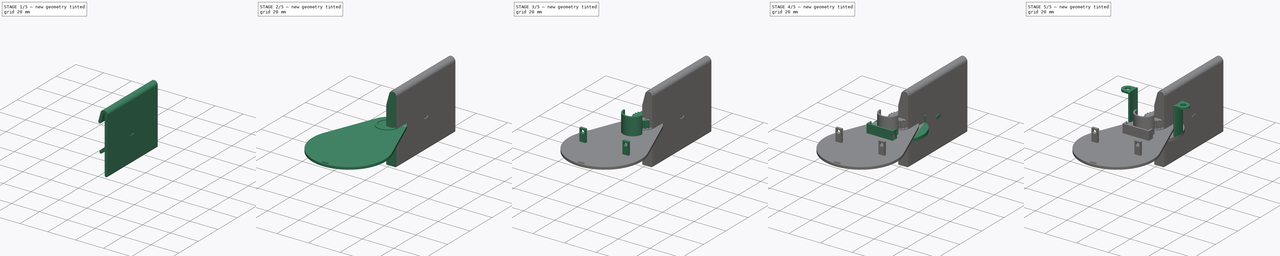
[diagram: build sequence overview — one tinted view per stage of 5, left to right]
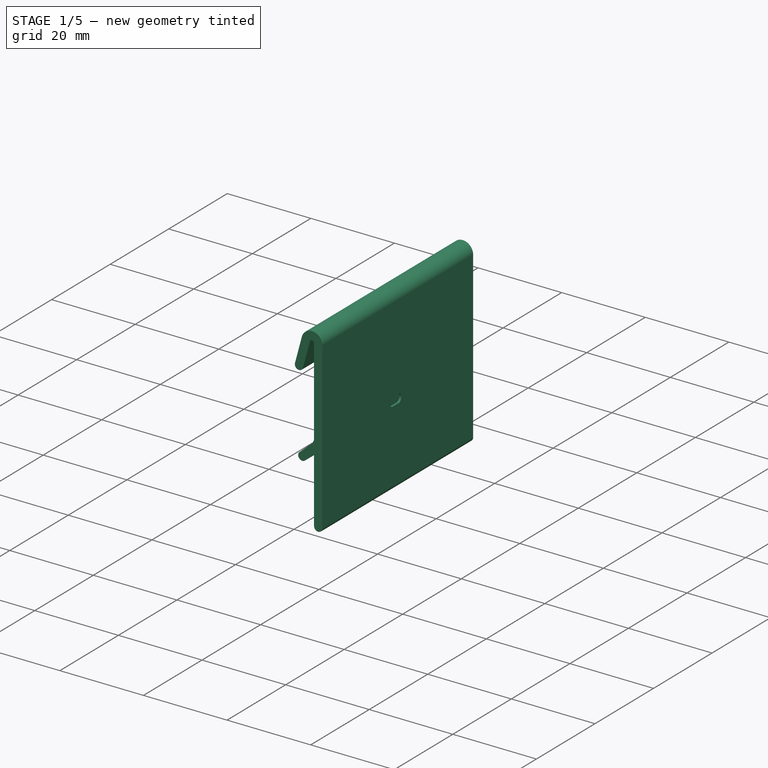
[diagram: stage 1 of 5 — iso view after this stage's code; geometry added in this stage tinted green]
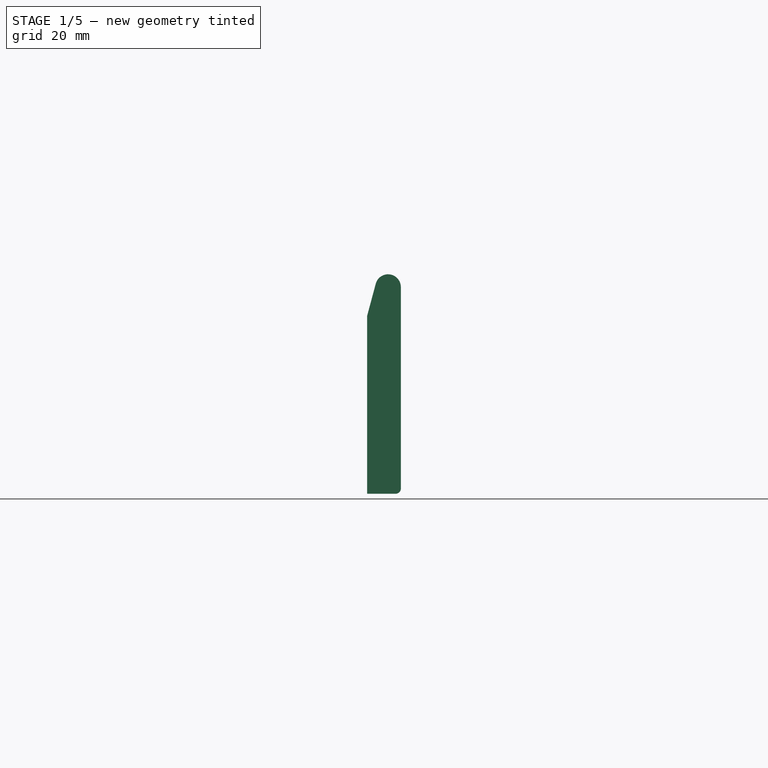
[diagram: stage 1 of 5 — front view after this stage's code; geometry added in this stage tinted green]
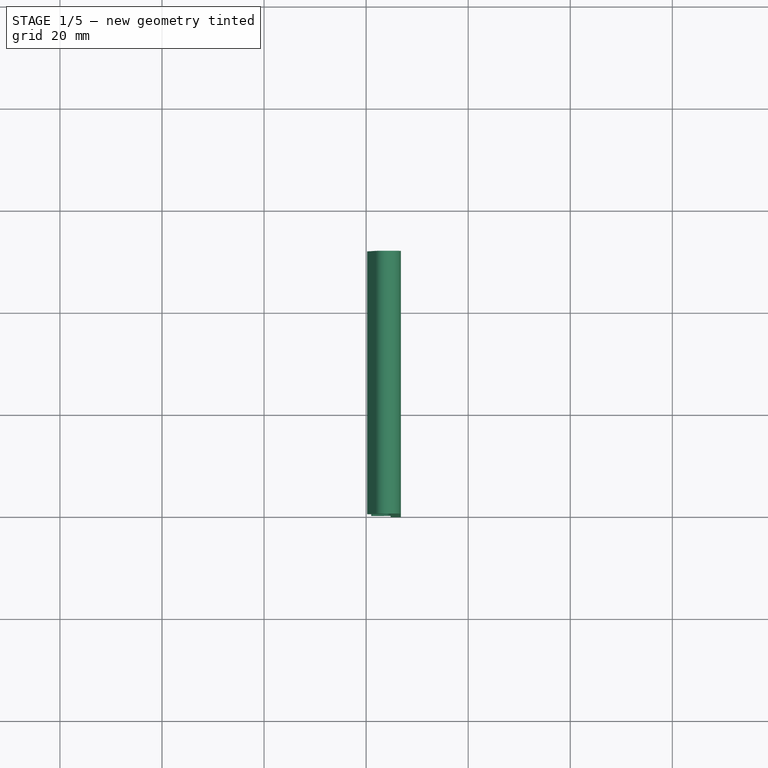
[diagram: stage 1 of 5 — top view after this stage's code; geometry added in this stage tinted green]
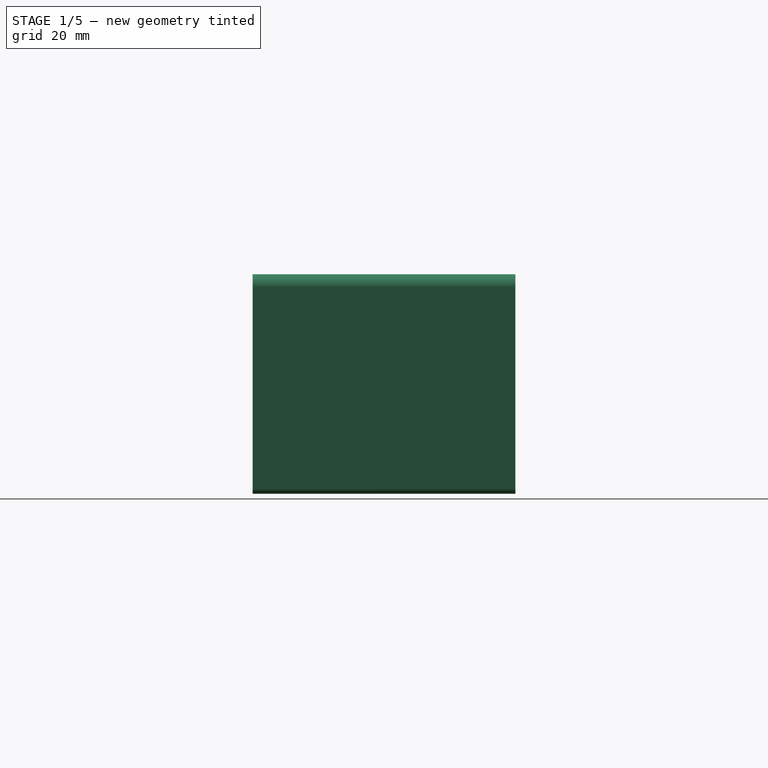
[diagram: stage 1 of 5 — right view after this stage's code; geometry added in this stage tinted green]
FCSTD DOCUMENT  (FreeCAD 1.1R20260414 (Git shallow))
Label: parts
License: Creative Commons Attribution 4.0
LicenseURL: https://creativecommons.org/licenses/by/4.0/
objects: Sketcher::SketchObject×24, PartDesign::Pad×18, App::Point×9, PartDesign::Body×9, PartDesign::SubShapeBinder×8, PartDesign::Pocket×7, PartDesign::FeatureBase×3, Part::Feature×2, PartDesign::Mirrored×2, App::VarSet×1, Part::DatumPlane×1, Part::FeaturePython×1, PartDesign::PolarPattern×1
note: 155 computed .brp shape members not serialized (recipe doc carries the construction recipe); baked Part::Feature solids carry a one-line shape summary decoded from their .brp

FEATURE [App::VarSet] VarSet
  thickness = 1.5
FEATURE [Part::Feature] Part__Feature  label="Servo-sg90-final"
  Placement = pos=(-11.5,-19.65,7.4) rot=(0.57735,0.57735,-0.57735;2.0944rad)
  shape: bbox 32.4 x 29.9 x 11.8 mm, 77 faces (baked)
FEATURE [Part::Feature] Part__Feature001  label="28BYJ-48_final"
  Placement = pos=(8.2,25,-1.35) rot=(0.57735,-0.57735,0.57735;4.18879rad)
  shape: bbox 29 x 42 x 31 mm, 57 faces, 3 solids (baked)
FEATURE [App::Point] Origin013  label="Origin016"
  Role = Origin
FEATURE [Sketcher::SketchObject] Sketch009
  ArcFitTolerance = 1e-06
  AttachmentSupport = -> [Origin012]
  ExternalTypes = [0]
  FullyConstrained = true
  MakeInternals = true
  MapMode = 5
  Placement = pos=(0,0,0) rot=(1,0,0;1.5708rad)
  _ExternalGeoVersion = 0
  expr: Constraints[17] = 41 mm / 2
  expr: Constraints[23] = 16.3 mm / 2
  expr: Constraints[32] = 9.3 mm / 2
  sketch-geometry (37):
    g0: LineSegment [constr] StartX=-9.45 StartY=0 StartZ=0 EndX=9.65 EndY=0 EndZ=0
    g1: GeomPoint [constr] X=0 Y=4.8 Z=0
    g2: LineSegment StartX=-9.65 StartY=0.2 StartZ=0 EndX=-9.65 EndY=0.616658 EndZ=0
    g3: LineSegment StartX=-10.0202 StartY=1.09952 StartZ=0 EndX=-20.1298 EndY=3.81714 EndZ=0
    g4: ArcOfCircle CenterX=-20 CenterY=4.3 CenterZ=0 NormalX=0 NormalY=0 NormalZ=1 AngleXU=0 Radius=0.5 StartAngle=1.30819 EndAngle=4.44978
    g5: LineSegment StartX=-19.8702 StartY=4.78286 StartZ=0 EndX=-8.45082 EndY=1.71314 EndZ=0
    g6: LineSegment [constr] StartX=0 StartY=4.8 StartZ=0 EndX=-20 EndY=4.8 EndZ=0
    g7: LineSegment [constr] StartX=-20.5 StartY=0 StartZ=0 EndX=-20.5 EndY=4.3 EndZ=0
    g8: LineSegment StartX=-7.94482 StartY=1.86665 StartZ=0 EndX=-5.5262 EndY=4.62935 EndZ=0
    g9: ArcOfCircle CenterX=-5.15 CenterY=4.3 CenterZ=0 NormalX=0 NormalY=0 NormalZ=1 AngleXU=0 Radius=0.5 StartAngle=5.5641 EndAngle=8.70569
    g10: LineSegment StartX=-4.7738 StartY=3.97065 StartZ=0 EndX=-6.93883 EndY=1.49761 EndZ=0
    g11: LineSegment StartX=-6.71311 StartY=1 StartZ=0 EndX=6.71311 EndY=1 EndZ=0
    g12: ArcOfCircle CenterX=-6.71311 CenterY=1.3 CenterZ=0 NormalX=0 NormalY=0 NormalZ=1 AngleXU=0 Radius=0.3 StartAngle=2.42251 EndAngle=4.71239
    g13: GeomPoint [constr] X=-7.37446 Y=1 Z=0
    g14: LineSegment [constr] StartX=-4.65 StartY=4.3 StartZ=0 EndX=-4.65 EndY=1 EndZ=0
    g15: ArcOfCircle CenterX=-8.32102 CenterY=2.196 CenterZ=0 NormalX=0 NormalY=0 NormalZ=1 AngleXU=0 Radius=0.5 StartAngle=4.44978 EndAngle=5.5641
    g16: GeomPoint [constr] X=-8.15 Y=1.63228 Z=0
    g17: ArcOfCircle CenterX=-10.15 CenterY=0.616658 CenterZ=0 NormalX=0 NormalY=0 NormalZ=1 AngleXU=0 Radius=0.5 StartAngle=0 EndAngle=1.30819
    g18: GeomPoint [constr] X=-9.65 Y=1 Z=0
    g19: ArcOfCircle CenterX=-9.45 CenterY=0.2 CenterZ=0 NormalX=0 NormalY=0 NormalZ=1 AngleXU=0 Radius=0.2 StartAngle=3.14159 EndAngle=4.71239
    g20: GeomPoint [constr] X=-9.65 Y=0 Z=0
    g21: LineSegment StartX=10.0202 StartY=1.09952 StartZ=0 EndX=20.1298 EndY=3.81714 EndZ=0
    g22: ArcOfCircle CenterX=20 CenterY=4.3 CenterZ=0 NormalX=0 NormalY=0 NormalZ=1 AngleXU=0 Radius=0.5 StartAngle=4.97499 EndAngle=8.1166
    g23: LineSegment StartX=19.8702 StartY=4.78286 StartZ=0 EndX=8.45082 EndY=1.71314 EndZ=0
    g24: LineSegment StartX=7.94482 StartY=1.86665 StartZ=0 EndX=5.5262 EndY=4.62935 EndZ=0
    g25: ArcOfCircle CenterX=5.15 CenterY=4.3 CenterZ=0 NormalX=0 NormalY=0 NormalZ=1 AngleXU=0 Radius=0.5 StartAngle=0.719087 EndAngle=3.86068
    g26: LineSegment StartX=4.7738 StartY=3.97065 StartZ=0 EndX=6.93883 EndY=1.49761 EndZ=0
    g27: ArcOfCircle CenterX=6.71311 CenterY=1.3 CenterZ=0 NormalX=0 NormalY=0 NormalZ=1 AngleXU=0 Radius=0.3 StartAngle=4.71239 EndAngle=7.00227
    g28: GeomPoint [constr] X=7.37446 Y=1 Z=0
    g29: LineSegment [constr] StartX=4.65 StartY=4.3 StartZ=0 EndX=4.65 EndY=1 EndZ=0
    g30: ArcOfCircle CenterX=8.32102 CenterY=2.196 CenterZ=0 NormalX=0 NormalY=0 NormalZ=1 AngleXU=0 Radius=0.5 StartAngle=3.86068 EndAngle=4.975
    g31: GeomPoint [constr] X=8.15 Y=1.63228 Z=0
    g32: ArcOfCircle CenterX=10.15 CenterY=0.616658 CenterZ=0 NormalX=0 NormalY=0 NormalZ=1 AngleXU=0 Radius=0.5 StartAngle=1.8334 EndAngle=3.14159
    g33: GeomPoint [constr] X=9.65 Y=1 Z=0
    g34: LineSegment StartX=9.65 StartY=0.2 StartZ=0 EndX=9.65 EndY=0.616658 EndZ=0
    g35: ArcOfCircle CenterX=9.45 CenterY=0.2 CenterZ=0 NormalX=0 NormalY=0 NormalZ=1 AngleXU=0 Radius=0.2 StartAngle=4.71239 EndAngle=6.28319
    g36: LineSegment StartX=-9.45 StartY=0 StartZ=0 EndX=9.45 EndY=0 EndZ=0
  constraints (85):
    c: PointOnObject(g20,g-1)
    c: Symmetric(g20,g0,g-2)
    c: DistanceX(g20,g0) = 19.3
    c: PointOnObject(g1,g-2)
    c: DistanceY(g-1,g1) = 4.8
    c: Vertical(g2)
    c: Distance(g20,g18) = 1
    c: Tangent(g5,g4) = 1.5708
    c: Tangent(g4,g3) = 1.5708
    c: Parallel(g5,g3)
    c: Radius(g4) = 0.5
    c: Coincident(g6,g1)
    c: Horizontal(g6)
    c: Tangent(g6,g4) = -1.5708
    c: PointOnObject(g7,g-1)
    c: Tangent(g7,g4) = 1.5708
    c: Vertical(g7)
    c: Distance(g-2,g7) = 20.5
    c: Tangent(g9,g10) = 1.5708
    c: Tangent(g9,g8) = 1.5708
    c: Parallel(g10,g8)
    c: Radius(g9) = 0.5
    c: Tangent(g9,g6)
    c: DistanceX(g16,g-1) = 8.15
    c: Distance(g13,g0) = 1
    c: PointOnObject(g13,g11)
    c: PointOnObject(g13,g10)
    c: Tangent(g11,g12) = -1.5708
    c: Tangent(g10,g12) = -1.5708
    c: Tangent(g14,g9) = 1.5708
    c: PointOnObject(g14,g11)
    c: Vertical(g14)
    c: Distance(g-2,g14) = 4.65
    c: PointOnObject(g16,g5)
    c: PointOnObject(g16,g8)
    c: Tangent(g5,g15) = -1.5708
    c: Tangent(g8,g15) = -1.5708
    c: PointOnObject(g18,g3)
    c: PointOnObject(g18,g2)
    c: Tangent(g3,g17) = -1.5708
    c: Tangent(g2,g17) = -1.5708
    c: PointOnObject(g20,g2)
    c: PointOnObject(g20,g0)
    c: Tangent(g2,g19) = 1.5708
    c: Tangent(g0,g19) = -1.5708
    c: Radius(g15) = 0.5
    c: Radius(g12) = 0.3
    c: Radius(g17) = 0.5
    c: Radius(g19) = 0.2
    c: Symmetric(g2,g34,g-2)
    c: Symmetric(g2,g34,g-2)
    c: Symmetric(g3,g21,g-2)
    c: Symmetric(g3,g21,g-2)
    c: Symmetric(g4,g22,g-2)
    c: Symmetric(g4,g22,g-2)
    c: Symmetric(g5,g23,g-2)
    c: Symmetric(g5,g23,g-2)
    c: Symmetric(g8,g24,g-2)
    c: Symmetric(g8,g24,g-2)
    c: Symmetric(g9,g25,g-2)
    c: Symmetric(g9,g25,g-2)
    c: Symmetric(g10,g26,g-2)
    c: Symmetric(g10,g26,g-2)
    c: Equal(g12,g27)
    c: Symmetric(g12,g27,g-2)
    c: Symmetric(g12,g27,g-2)
    c: Symmetric(g13,g28,g-2)
    c: Symmetric(g14,g29,g-2)
    c: Symmetric(g14,g29,g-2)
    c: Equal(g15,g30)
    c: Symmetric(g15,g30,g-2)
    c: Symmetric(g15,g30,g-2)
    c: Symmetric(g16,g31,g-2)
    c: Equal(g17,g32)
    c: Symmetric(g17,g32,g-2)
    c: Symmetric(g17,g32,g-2)
    c: Symmetric(g18,g33,g-2)
    c: Equal(g19,g35)
    c: Symmetric(g19,g35,g-2)
    c: Symmetric(g19,g35,g-2)
    c: Tangent(g25,g24)
    c: Coincident(g11,g27)
    c: Coincident(g36,g0)
    c: Coincident(g36,g35)
    c: Tangent(g22,g23)
FEATURE [PartDesign::Pad] Pad008
  Direction = (0,-1,2e-16)
  Length = 600
  Length2 = 10
  Profile = -> Sketch009
  ReferenceAxis = -> Sketch009 [N_Axis]
  Refine = true
  Reversed = true
  SideType = 0
  Suppressed = false
  Type = 0
  Type2 = 0
FEATURE [PartDesign::Body] Body005  label="Ruler"
  AllowCompound = false
  Group = -> [Sketch009,Pad008]
  Origin = -> Origin012
  Placement = pos=(0,0,0) rot=(0,1,0;1.5708rad)
  Tip = -> Pad008
FEATURE [App::Point] Origin015  label="Origin019"
  Role = Origin
FEATURE [PartDesign::SubShapeBinder] Binder002
  BindCopyOnChange = 0
  BindMode = 0
  ClaimChildren = false
  Context = -> Body006 [Binder002.]
  Fuse = false
  MakeFace = true
  OffsetFill = false
  OffsetIntersection = false
  OffsetJoinType = 0
  OffsetOpenResult = false
  PartialLoad = false
  Refine = true
  Relative = true
  Support = -> [Body005[Pad008.Face25]]
  _Version = 2
FEATURE [Sketcher::SketchObject] Sketch010
  ArcFitTolerance = 1e-06
  AttachmentSupport = -> [Origin014]
  ExternalGeometry = -> [Binder002]
  ExternalTypes = [0,0,0,0,0]
  FullyConstrained = true
  MakeInternals = true
  MapMode = 5
  Placement = pos=(0,0,0) rot=(1,0,0;1.5708rad)
  _ExternalGeoVersion = 0
  sketch-geometry (23):
    g0: LineSegment [constr] StartX=1.2 StartY=14.2461 StartZ=0 EndX=2.85143 EndY=20.3894 EndZ=0
    g1: LineSegment [constr] StartX=5.8 StartY=20 StartZ=0 EndX=5.8 EndY=-0.48238 EndZ=0
    g2: LineSegment [constr] StartX=4.77609 StartY=-2.7396 StartZ=0 EndX=2 EndY=-5.16994 EndZ=0
    g3: LineSegment [constr] StartX=4.8 StartY=21.4142 StartZ=0 EndX=4.8 EndY=19.8702 EndZ=0
    g4: LineSegment [constr] StartX=4.8 StartY=19.8702 StartZ=0 EndX=5.8 EndY=19.8702 EndZ=0
    g5: LineSegment [constr] StartX=3.81714 StartY=20.1298 StartZ=0 EndX=2.85143 EndY=20.3894 EndZ=0
    g6: LineSegment [constr] StartX=3.97065 StartY=-4.7738 StartZ=0 EndX=3.31195 EndY=-4.02139 EndZ=0
    g7: ArcOfCircle [constr] CenterX=4.3 CenterY=20 CenterZ=0 NormalX=0 NormalY=0 NormalZ=1 AngleXU=0 Radius=1.5 StartAngle=5e-16 EndAngle=2.87898
    g8: ArcOfCircle [constr] CenterX=2.8 CenterY=-0.48238 CenterZ=0 NormalX=0 NormalY=0 NormalZ=1 AngleXU=0 Radius=3 StartAngle=5.43148 EndAngle=6.28319
    g9: GeomPoint [constr] X=5.8 Y=-1.84322 Z=0
    g10: ArcOfCircle CenterX=2 CenterY=-5.16994 CenterZ=0 NormalX=0 NormalY=0 NormalZ=1 AngleXU=0.719087 Radius=1 StartAngle=1.5708 EndAngle=4.71239
    g11: LineSegment StartX=4.1174 StartY=-1.9872 StartZ=0 EndX=1.3413 EndY=-4.41753 EndZ=0
    g12: ArcOfCircle CenterX=2.8 CenterY=-0.48238 CenterZ=0 NormalX=0 NormalY=0 NormalZ=1 AngleXU=0 Radius=2 StartAngle=5.43148 EndAngle=6.28319
    g13: LineSegment StartX=4.8 StartY=20 StartZ=0 EndX=4.8 EndY=-0.48238 EndZ=0
    g14: ArcOfCircle CenterX=4.3 CenterY=20 CenterZ=0 NormalX=0 NormalY=0 NormalZ=1 AngleXU=0 Radius=0.5 StartAngle=1.4e-15 EndAngle=2.87898
    g15: LineSegment StartX=2.16572 StartY=13.9865 StartZ=0 EndX=3.81714 EndY=20.1298 EndZ=0
    g16: ArcOfCircle CenterX=1.2 CenterY=14.2461 CenterZ=0 NormalX=0 NormalY=0 NormalZ=1 AngleXU=1.30819 Radius=1 StartAngle=1.5708 EndAngle=4.71239
    g17: LineSegment StartX=0.234284 StartY=14.5057 StartZ=0 EndX=1.88571 EndY=20.649 EndZ=0
    g18: ArcOfCircle CenterX=4.3 CenterY=20 CenterZ=0 NormalX=0 NormalY=0 NormalZ=1 AngleXU=0 Radius=2.5 StartAngle=-2.4e-14 EndAngle=2.87898
    g19: LineSegment StartX=6.8 StartY=20 StartZ=0 EndX=6.8 EndY=-0.48238 EndZ=0
    g20: ArcOfCircle CenterX=2.8 CenterY=-0.48238 CenterZ=0 NormalX=0 NormalY=0 NormalZ=1 AngleXU=0 Radius=4 StartAngle=5.43148 EndAngle=6.28319
    g21: LineSegment StartX=5.43479 StartY=-3.49201 StartZ=0 EndX=2.6587 EndY=-5.92235 EndZ=0
    g22: LineSegment [constr] StartX=0.2 StartY=14.2461 StartZ=0 EndX=0.2 EndY=13.7461 EndZ=0
  constraints (55):
    c: Vertical(g1)
    c: Parallel(g0,g-3)
    c: Parallel(g2,g-5)
    c: Tangent(g-4,g3)
    c: Vertical(g3)
    c: Coincident(g4,g3)
    c: PointOnObject(g4,g1)
    c: Horizontal(g4)
    c: Coincident(g5,g-4)
    c: PointOnObject(g5,g0)
    c: Perpendicular(g5,g0)
    c: PointOnObject(g-4,g4)
    c: Coincident(g6,g-6)
    c: PointOnObject(g6,g2)
    c: Perpendicular(g6,g2)
    c: Equal(g6,g5)
    c: Tangent(g7,g0) = 1.5708
    c: Tangent(g7,g1) = 1.5708
    c: Coincident(g7,g-4)
    c: PointOnObject(g9,g2)
    c: PointOnObject(g9,g1)
    c: Tangent(g2,g8) = 1.5708
    c: Tangent(g1,g8) = 1.5708
    c: Radius(g8) = 3
    c: PointOnObject(g3,g7)
    c: Distance(g4,g4) = 1
    c: Tangent(g10,g11) = -1.5708
    c: Tangent(g10,g21) = 1.5708
    c: Tangent(g11,g12) = 1.5708
    c: Tangent(g12,g13) = 1.5708
    c: Tangent(g13,g14) = 1.5708
    c: Tangent(g14,g15) = 1.5708
    c: Tangent(g15,g16) = -1.5708
    c: Tangent(g16,g17) = 1.5708
    c: Tangent(g17,g18) = 1.5708
    c: Tangent(g18,g19) = 1.5708
    c: Tangent(g19,g20) = 1.5708
    c: Tangent(g20,g21) = 1.5708
    c: Parallel(g21,g2)
    c: Coincident(g10,g2)
    c: Parallel(g11,g2)
    c: Coincident(g12,g8)
    c: Parallel(g13,g1)
    c: Coincident(g14,g7)
    c: Parallel(g15,g0)
    c: Coincident(g16,g0)
    c: Parallel(g17,g0)
    c: Coincident(g18,g7)
    c: Coincident(g20,g8)
    c: Distance(g20,g8) = 1  'half_thickness'
    c: Tangent(g10,g-7)
    c: Tangent(g22,g16) = -1.5708
    c: Vertical(g22)
    c: Distance(g-2,g22) = 0.2
    c: DistanceY(g22,g22) = 0.5
FEATURE [PartDesign::Pad] Pad009
  Direction = (0,-1,2e-16)
  Length = 50
  Length2 = 10
  Profile = -> Sketch010
  ReferenceAxis = -> Sketch010 [N_Axis]
  Refine = true
  Reversed = true
  SideType = 0
  Suppressed = false
  Type = 0
  Type2 = 0
FEATURE [Sketcher::SketchObject] Sketch011
  ArcFitTolerance = 1e-06
  AttachmentSupport = -> [Pad009]
  ExternalGeometry = -> [Pad009,Binder002]
  ExternalTypes = [0,0,0]
  FullyConstrained = true
  MakeInternals = true
  MapMode = 5
  Placement = pos=(0,2.2e-15,0) rot=(1,0,0;1.5708rad)
  _ExternalGeoVersion = 0
  sketch-geometry (5):
    g0: LineSegment StartX=4.8 StartY=-0.48238 StartZ=0 EndX=4.8 EndY=-19.5 EndZ=0
    g1: ArcOfCircle CenterX=5.8 CenterY=-19.5 CenterZ=0 NormalX=0 NormalY=0 NormalZ=1 AngleXU=0 Radius=1 StartAngle=3.14159 EndAngle=6.28319
    g2: LineSegment StartX=6.8 StartY=-19.5 StartZ=0 EndX=6.8 EndY=-0.48238 EndZ=0
    g3: LineSegment [constr] StartX=4.3 StartY=-20.5 StartZ=0 EndX=5.8 EndY=-20.5 EndZ=0
    g4: LineSegment StartX=4.8 StartY=-0.48238 StartZ=0 EndX=6.8 EndY=-0.48238 EndZ=0
  constraints (11):
    c: Coincident(g-3,g0)
    c: Vertical(g0)
    c: Tangent(g0,g1) = -1.5708
    c: Tangent(g1,g2) = -1.5708
    c: Coincident(g2,g-4)
    c: Horizontal(g3)
    c: Tangent(g3,g-5) = -1.5708
    c: Vertical(g2)
    c: Tangent(g3,g1) = -1.5708
    c: Coincident(g4,g0)
    c: Coincident(g4,g2)
FEATURE [PartDesign::Pad] Pad010
  BaseFeature = -> Pad009
  Direction = (0,-1,2e-16)
  Length = 10
  Length2 = 10
  Profile = -> Sketch011
  ReferenceAxis = -> Sketch011 [N_Axis]
  Refine = true
  Reversed = true
  SideType = 0
  Suppressed = false
  Type = 3
  Type2 = 0
  UpToFace = -> Pad009 [Face14]
FEATURE [PartDesign::Body] Body007  label="StepperHolder"
  AllowCompound = false
  Group = -> [Binder003,Sketch013,Pad011,Sketch014,Pad012,Sketch015,Pad013,Sketch016,Pad014,DatumPlane001,Sketch017,Pad015,Sketch018,Pocket004,Sketch019,Pocket005,Mirrored002,Sketch020,Pocket006]
  Origin = -> Origin016
  Placement = pos=(8.2,25,-1.35) rot=(0.57735,-0.57735,0.57735;4.18879rad)
  Tip = -> Pocket006
FEATURE [PartDesign::SubShapeBinder] Binder004
  BindCopyOnChange = 0
  BindMode = 2
  ClaimChildren = false
  Context = -> Body006 [Binder004.]
  Fuse = false
  MakeFace = true
  OffsetFill = false
  OffsetIntersection = false
  OffsetJoinType = 0
  OffsetOpenResult = false
  PartialLoad = false
  Refine = true
  Relative = true
  _Version = 2
FEATURE [Sketcher::SketchObject] Sketch021
  ArcFitTolerance = 1e-06
  AttachmentSupport = -> [Pad010]
  ExternalGeometry = -> [Binder004]
  ExternalTypes = [0]
  FullyConstrained = true
  MakeInternals = true
  MapMode = 5
  Placement = pos=(6.8,0,-3.74e-14) rot=(0.57735,0.57735,0.57735;2.0944rad)
  _ExternalGeoVersion = 0
FEATURE [PartDesign::Pocket] Pocket007
  BaseFeature = -> Pad010
  Direction = (-1,-1e-16,5.4e-15)
  Length = 0.5
  Length2 = 5
  Profile = -> Sketch021
  ReferenceAxis = -> Sketch021 [N_Axis]
  Refine = true
  SideType = 0
  Suppressed = false
  Type = 0
  Type2 = 0
FEATURE [PartDesign::Body] Body  label="HookPad_Left"
  AllowCompound = false
  Group = -> [Clone,Sketch,Pad]
  Origin = -> Origin
  Tip = -> Pad
FEATURE [App::Point] Origin028  label="Origin037"
  Role = Origin
FEATURE [PartDesign::FeatureBase] Clone001
  BaseFeature = -> Body006
  Suppressed = false
FEATURE [Sketcher::SketchObject] Sketch034
  ArcFitTolerance = 1e-06
  AttachmentSupport = -> [Clone001]
  ExternalGeometry = -> [Clone001]
  ExternalTypes = [0,0,0,0,0]
  FullyConstrained = true
  MakeInternals = true
  MapMode = 5
  Placement = pos=(-2e-14,50,0) rot=(0,0.707107,0.707107;3.14159rad)
  _ExternalGeoVersion = 0
  sketch-geometry (4):
    g0: ArcOfCircle CenterX=-1.2 CenterY=14.2461 CenterZ=0 NormalX=0 NormalY=0 NormalZ=1 AngleXU=0 Radius=1 StartAngle=-8.571e-13 EndAngle=0.262608
    g1: LineSegment StartX=-0.2 StartY=14.2461 StartZ=0 EndX=-0.2 EndY=-20.5 EndZ=0
    g2: LineSegment StartX=-0.2 StartY=-20.5 StartZ=0 EndX=-5.8 EndY=-20.5 EndZ=0
    g3: ArcOfCircle CenterX=-5.8 CenterY=-19.5 CenterZ=0 NormalX=0 NormalY=0 NormalZ=1 AngleXU=0 Radius=1 StartAngle=3.14159 EndAngle=4.71239
  constraints (9):
    c: Coincident(g0,g-7)
    c: Coincident(g1,g2)
    c: Horizontal(g2)
    c: Tangent(g2,g3) = 1.5708
    c: Coincident(g3,g-6)
    c: Coincident(g3,g-6)
    c: Vertical(g1)
    c: Coincident(g0,g-7)
    c: Tangent(g0,g1) = 1.5708
FEATURE [PartDesign::Pad] Pad025
  BaseFeature = -> Clone001
  Direction = (0,1,-2e-16)
  Length = 1.5
  Length2 = 10
  Profile = -> Sketch034
  ReferenceAxis = -> Sketch034 [N_Axis]
  Refine = true
  SideType = 0
  Suppressed = false
  Type = 0
  Type2 = 0
FEATURE [PartDesign::Body] Body012  label="HookPad_Right"
  AllowCompound = false
  Group = -> [Clone001,Sketch034,Pad025]
  Origin = -> Origin027
  Tip = -> Pad025
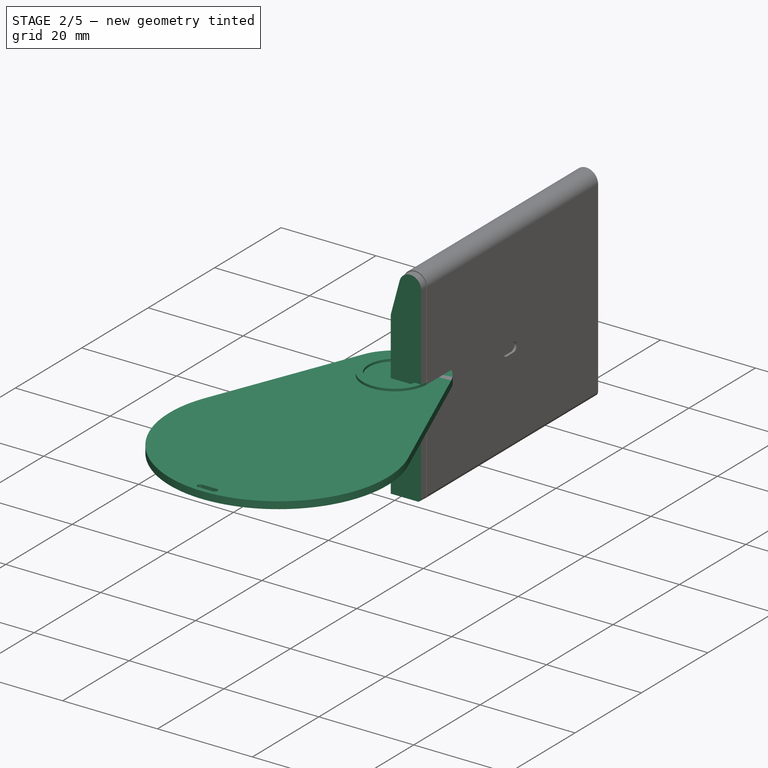
[diagram: stage 2 of 5 — iso view after this stage's code; geometry added in this stage tinted green]
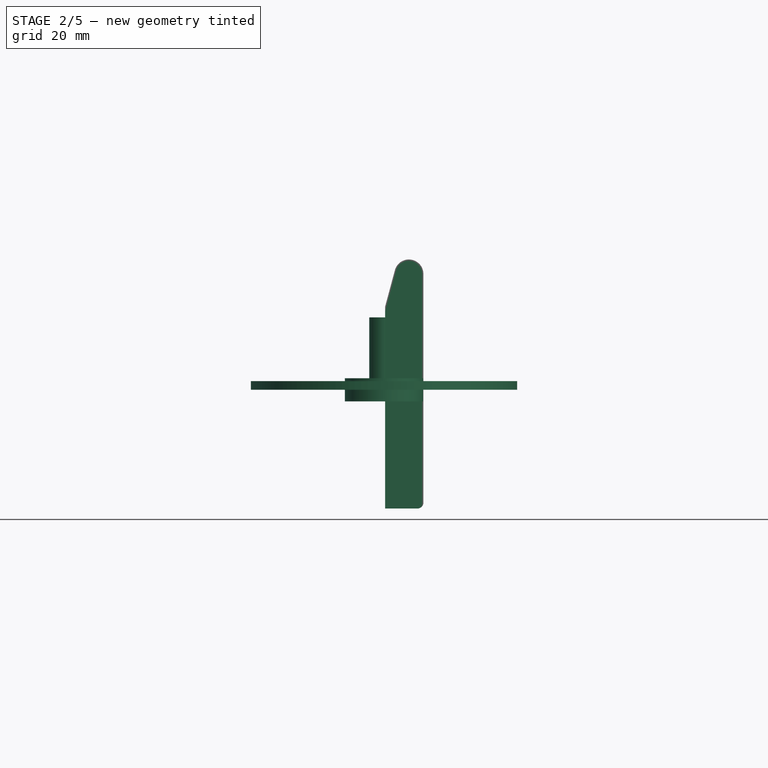
[diagram: stage 2 of 5 — front view after this stage's code; geometry added in this stage tinted green]
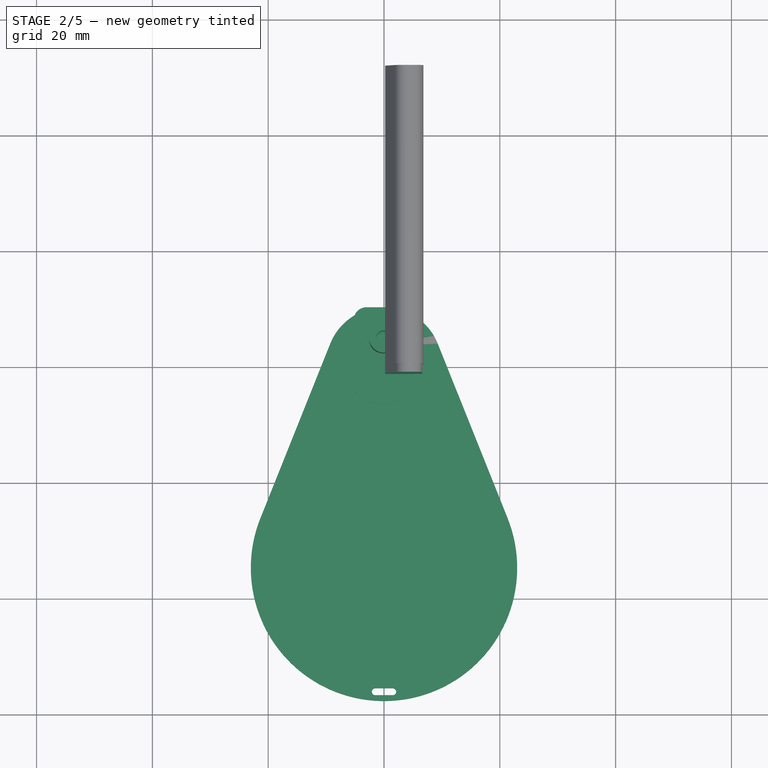
[diagram: stage 2 of 5 — top view after this stage's code; geometry added in this stage tinted green]
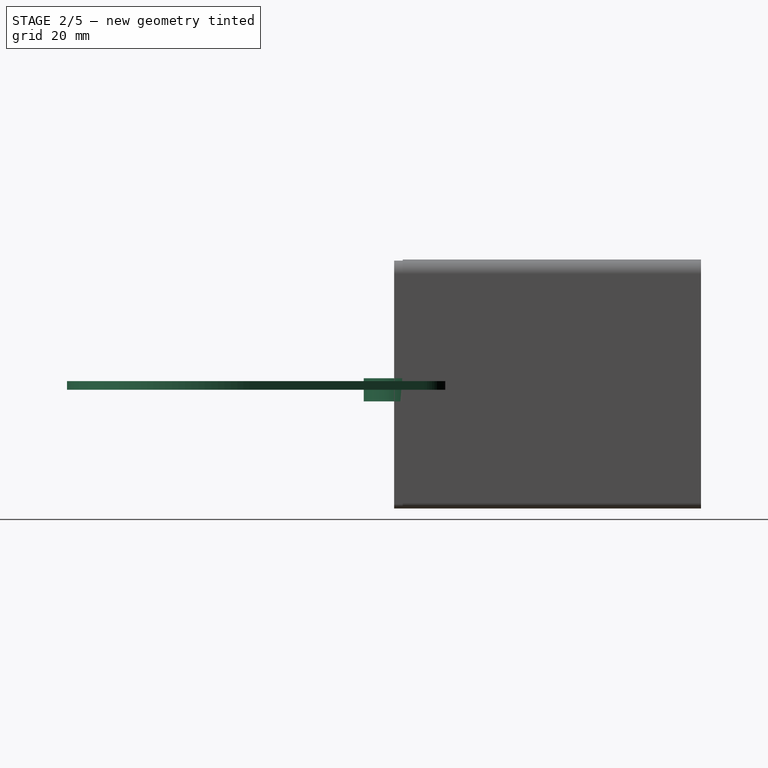
[diagram: stage 2 of 5 — right view after this stage's code; geometry added in this stage tinted green]
FEATURE [PartDesign::Body] Body009  label="Pulley"
  AllowCompound = false
  BaseFeature = -> TimingGear
  Group = -> [BaseFeature,Binder006,Pocket008,Sketch022,Pocket009,PolarPattern]
  Origin = -> Origin020
  Placement = pos=(28.7,25,-9.35) rot=(0.57735,0.57735,0.57735;2.0944rad)
  Tip = -> PolarPattern
FEATURE [App::Point] Origin023  label="Origin030"
  Role = Origin
FEATURE [Sketcher::SketchObject] Sketch024
  ArcFitTolerance = 1e-06
  AttachmentSupport = -> [Origin022]
  ExternalTypes = [0]
  FullyConstrained = true
  MakeInternals = true
  MapMode = 5
  _ExternalGeoVersion = 0
  sketch-geometry (9):
    g0: ArcOfCircle CenterX=0 CenterY=0 CenterZ=0 NormalX=0 NormalY=0 NormalZ=1 AngleXU=0 Radius=10 StartAngle=0.380547 EndAngle=2.76105
    g1: ArcOfCircle CenterX=0 CenterY=-35 CenterZ=0 NormalX=0 NormalY=0 NormalZ=1 AngleXU=0 Radius=23 StartAngle=2.76105 EndAngle=6.66373
    g2: LineSegment StartX=9.28462 StartY=3.71429 StartZ=0 EndX=21.3546 EndY=-26.4571 EndZ=0
    g3: LineSegment StartX=-9.28462 StartY=3.71429 StartZ=0 EndX=-21.3546 EndY=-26.4571 EndZ=0
    g4: ArcOfCircle CenterX=-1.5 CenterY=-56.4 CenterZ=0 NormalX=0 NormalY=0 NormalZ=1 AngleXU=0 Radius=0.6 StartAngle=1.5708 EndAngle=4.71239
    g5: ArcOfCircle CenterX=1.5 CenterY=-56.4 CenterZ=0 NormalX=0 NormalY=0 NormalZ=1 AngleXU=0 Radius=0.6 StartAngle=4.71239 EndAngle=7.85398
    g6: LineSegment StartX=-1.5 StartY=-55.8 StartZ=0 EndX=1.5 EndY=-55.8 EndZ=0
    g7: LineSegment StartX=-1.5 StartY=-57 StartZ=0 EndX=1.5 EndY=-57 EndZ=0
    g8: GeomPoint [constr] X=0 Y=-58 Z=0
  constraints (20):
    c: Tangent(g0,g2) = 1.5708
    c: Tangent(g0,g3) = -1.5708
    c: Tangent(g1,g2) = 1.5708
    c: Tangent(g1,g3) = -1.5708
    c: Coincident(g0,g-1)
    c: PointOnObject(g1,g-2)
    c: Radius(g1) = 23
    c: Radius(g0) = 10
    c: DistanceY(g1,g-1) = 35
    c: Tangent(g4,g6) = 1.5708
    c: Tangent(g4,g7) = -1.5708
    c: Tangent(g5,g6) = 1.5708
    c: Tangent(g5,g7) = -1.5708
    c: Equal(g4,g5)
    c: Radius(g5) = 0.6
    c: Symmetric(g4,g5,g-2)
    c: Distance(g7,g7) = 3
    c: PointOnObject(g8,g1)
    c: PointOnObject(g8,g-2)
    c: Distance(g8,g7) = 1
FEATURE [PartDesign::Pad] Pad018
  Direction = (0,0,1)
  Length = 1.5
  Length2 = 10
  Profile = -> Sketch024
  ReferenceAxis = -> Sketch024 [N_Axis]
  Refine = true
  SideType = 0
  Suppressed = false
  Type = 0
  Type2 = 0
FEATURE [Sketcher::SketchObject] Sketch025
  ArcFitTolerance = 1e-06
  AttachmentSupport = -> [Pad018]
  ExternalGeometry = -> [Pad018]
  ExternalTypes = [0]
  FullyConstrained = false
  MakeInternals = true
  MapMode = 5
  Placement = pos=(0,0,1.5) rot=(0,0,1;0rad)
  _ExternalGeoVersion = 0
  sketch-geometry (3):
    g0: Circle [constr] CenterX=-0.057612 CenterY=4.49963 CenterZ=0 NormalX=0 NormalY=0 NormalZ=1 AngleXU=0 Radius=5.5
    g1: Circle CenterX=-0.057612 CenterY=4.49963 CenterZ=0 NormalX=0 NormalY=0 NormalZ=1 AngleXU=0 Radius=2.5
    g2: Circle CenterX=-0.057612 CenterY=4.49963 CenterZ=0 NormalX=0 NormalY=0 NormalZ=1 AngleXU=0 Radius=1.3
  constraints (6):
    c: Diameter(g0) = 11
    c: Diameter(g1) = 5
    c: Coincident(g0,g1)
    c: Tangent(g0,g-3)
    c: Coincident(g2,g0)
    c: Distance(g2,g1) = 1.2
FEATURE [PartDesign::Pad] Pad019
  BaseFeature = -> Pad018
  Direction = (0,0,1)
  Length = 11
  Length2 = 10
  Profile = -> Sketch025
  ReferenceAxis = -> Sketch025 [N_Axis]
  Refine = true
  SideType = 0
  Suppressed = false
  Type = 0
  Type2 = 0
FEATURE [PartDesign::SubShapeBinder] Binder
  BindCopyOnChange = 0
  BindMode = 2
  ClaimChildren = false
  Context = -> Body010 [Binder.]
  Fuse = false
  MakeFace = true
  OffsetFill = false
  OffsetIntersection = false
  OffsetJoinType = 0
  OffsetOpenResult = false
  PartialLoad = false
  Refine = true
  Relative = true
  _Version = 2
FEATURE [Sketcher::SketchObject] Sketch028
  ArcFitTolerance = 1e-06
  AttachmentSupport = -> [Binder]
  ExternalGeometry = -> [Binder]
  ExternalTypes = [0,0,0]
  FullyConstrained = true
  MakeInternals = true
  MapMode = 5
  Placement = pos=(0,-37.05,0) rot=(1,0,0;1.5708rad)
  _ExternalGeoVersion = 0
  sketch-geometry (7):
    g0: Circle CenterX=13.35 CenterY=-5.9 CenterZ=0 NormalX=0 NormalY=0 NormalZ=1 AngleXU=0 Radius=1.2
    g1: LineSegment StartX=11.35 StartY=0 StartZ=0 EndX=11.35 EndY=-8 EndZ=0
    g2: LineSegment StartX=11.35 StartY=-8 StartZ=0 EndX=15.35 EndY=-8 EndZ=0
    g3: LineSegment StartX=15.35 StartY=-8 StartZ=0 EndX=15.35 EndY=0 EndZ=0
    g4: LineSegment StartX=15.35 StartY=0 StartZ=0 EndX=11.35 EndY=0 EndZ=0
    g5: LineSegment [constr] StartX=13.35 StartY=-5.9 StartZ=0 EndX=11.35 EndY=-5.9 EndZ=0
    g6: LineSegment [constr] StartX=13.35 StartY=-5.9 StartZ=0 EndX=15.35 EndY=-5.9 EndZ=0
  constraints (20):
    c: Coincident(g0,g-5)
    c: Distance(g-5,g0) = 0.2
    c: Coincident(g1,g2)
    c: Coincident(g2,g3)
    c: Coincident(g3,g4)
    c: Coincident(g4,g1)
    c: Vertical(g1)
    c: Vertical(g3)
    c: Horizontal(g2)
    c: Horizontal(g4)
    c: PointOnObject(g1,g-1)
    c: Distance(g4,g4) = 4
    c: DistanceY(g3,g3) = 8
    c: Coincident(g5,g0)
    c: Horizontal(g5)
    c: Coincident(g6,g0)
    c: PointOnObject(g6,g3)
    c: Horizontal(g6)
    c: Equal(g5,g6)
    c: PointOnObject(g5,g1)
FEATURE [PartDesign::Pad] Pad020
  BaseFeature = -> Pad019
  Direction = (0,-1,2e-16)
  Length = 1.5
  Length2 = 10
  Profile = -> Sketch028
  ReferenceAxis = -> Sketch028 [N_Axis]
  Refine = true
  SideType = 0
  Suppressed = true
  Type = 0
  Type2 = 0
FEATURE [Sketcher::SketchObject] Sketch029
  ArcFitTolerance = 1e-06
  AttachmentSupport = -> [Binder]
  ExternalGeometry = -> [Binder]
  ExternalTypes = [0]
  FullyConstrained = true
  MakeInternals = true
  MapMode = 5
  Placement = pos=(0,-37.05,0) rot=(1,0,0;1.5708rad)
  _ExternalGeoVersion = 0
  sketch-geometry (6):
    g0: LineSegment StartX=-15.85 StartY=0 StartZ=0 EndX=-15.85 EndY=-8 EndZ=0
    g1: LineSegment StartX=-15.85 StartY=-8 StartZ=0 EndX=-11.85 EndY=-8 EndZ=0
    g2: LineSegment StartX=-11.85 StartY=-8 StartZ=0 EndX=-11.85 EndY=0 EndZ=0
    g3: LineSegment StartX=-11.85 StartY=0 StartZ=0 EndX=-15.85 EndY=0 EndZ=0
    g4: LineSegment [constr] StartX=-13.85 StartY=-5.9 StartZ=0 EndX=-11.85 EndY=-5.9 EndZ=0
    g5: Circle CenterX=-13.85 CenterY=-5.9 CenterZ=0 NormalX=0 NormalY=0 NormalZ=1 AngleXU=0 Radius=1.2
  constraints (17):
    c: Coincident(g0,g1)
    c: Coincident(g1,g2)
    c: Coincident(g2,g3)
    c: Coincident(g3,g0)
    c: Vertical(g0)
    c: Vertical(g2)
    c: Horizontal(g1)
    c: Horizontal(g3)
    c: PointOnObject(g0,g-1)
    c: Distance(g3,g3) = 4
    c: DistanceY(g0,g0) = 8
    c: Coincident(g4,g-3)
    c: PointOnObject(g4,g2)
    c: Horizontal(g4)
    c: DistanceX(g4,g4) = 2
    c: Coincident(g5,g4)
    c: Distance(g-3,g5) = 0.2
FEATURE [PartDesign::Pad] Pad021
  BaseFeature = -> Pad020
  Direction = (0,-1,2e-16)
  Length = 1.5
  Length2 = 10
  Profile = -> Sketch029
  ReferenceAxis = -> Sketch029 [N_Axis]
  Refine = true
  SideType = 0
  Suppressed = true
  Type = 0
  Type2 = 0
FEATURE [PartDesign::Body] Body010  label="Gondola"
  AllowCompound = false
  Group = -> [Sketch024,Pad018,Sketch025,Pad019,Binder,Sketch028,Pad020,Sketch029,Pad021,Sketch030,Binder007,Pocket010,Sketch031,Pad022,Mirrored003,Binder008,Sketch032,Pad023]
  Origin = -> Origin022
  Tip = -> Pad023
FEATURE [App::Point] Origin025  label="Origin033"
  Role = Origin
FEATURE [Sketcher::SketchObject] Sketch033
  ArcFitTolerance = 1e-06
  AttachmentSupport = -> [Origin024]
  ExternalTypes = [0]
  FullyConstrained = true
  MakeInternals = true
  MapMode = 5
  _ExternalGeoVersion = 0
  sketch-geometry (14):
    g0: Circle CenterX=0 CenterY=0 CenterZ=0 NormalX=0 NormalY=0 NormalZ=1 AngleXU=0 Radius=5.5
    g1: ArcOfCircle CenterX=0 CenterY=0 CenterZ=0 NormalX=0 NormalY=0 NormalZ=1 AngleXU=0 Radius=6.75 StartAngle=2.75922 EndAngle=6.66555
    g2: ArcOfCircle CenterX=-19.2708 CenterY=7.75 CenterZ=0 NormalX=0 NormalY=0 NormalZ=1 AngleXU=0 Radius=14.0208 StartAngle=5.90082 EndAngle=6.28319
    g3: ArcOfCircle CenterX=19.2708 CenterY=7.75 CenterZ=0 NormalX=0 NormalY=0 NormalZ=1 AngleXU=0 Radius=14.0208 StartAngle=3.14159 EndAngle=3.52396
    g4: ArcOfCircle CenterX=-3 CenterY=7.75 CenterZ=0 NormalX=0 NormalY=0 NormalZ=1 AngleXU=0 Radius=2.25 StartAngle=1.5708 EndAngle=3.14159
    g5: ArcOfCircle CenterX=3 CenterY=7.75 CenterZ=0 NormalX=0 NormalY=0 NormalZ=1 AngleXU=0 Radius=2.25 StartAngle=0 EndAngle=1.5708
    g6: LineSegment StartX=-3 StartY=10 StartZ=0 EndX=3 EndY=10 EndZ=0
    g7: ArcOfCircle CenterX=-3 CenterY=7.75 CenterZ=0 NormalX=0 NormalY=0 NormalZ=1 AngleXU=0 Radius=1 StartAngle=1.5708 EndAngle=4.71239
    g8: ArcOfCircle CenterX=3 CenterY=7.75 CenterZ=0 NormalX=0 NormalY=0 NormalZ=1 AngleXU=0 Radius=1 StartAngle=4.71239 EndAngle=7.85398
    g9: LineSegment StartX=-3 StartY=8.75 StartZ=0 EndX=3 EndY=8.75 EndZ=0
    g10: LineSegment StartX=-3 StartY=6.75 StartZ=0 EndX=3 EndY=6.75 EndZ=0
    g11: LineSegment [constr] StartX=-3 StartY=10 StartZ=0 EndX=-3 EndY=8.75 EndZ=0
    g12: LineSegment [constr] StartX=0 StartY=6.75 StartZ=0 EndX=0 EndY=5.5 EndZ=0
    g13: LineSegment [constr] StartX=5.5 StartY=0 StartZ=0 EndX=6.75 EndY=0 EndZ=0
  constraints (36):
    c: Coincident(g0,g-1)
    c: Coincident(g1,g0)
    c: Diameter(g0) = 11
    c: Tangent(g2,g1) = 1.5708
    c: Equal(g2,g3)
    c: Coincident(g5,g3)
    c: Tangent(g6,g4) = 1.5708
    c: Tangent(g6,g5) = 1.5708
    c: Tangent(g4,g2) = 1.5708
    c: Tangent(g7,g9) = 1.5708
    c: Tangent(g7,g10) = -1.5708
    c: Tangent(g8,g9) = 1.5708
    c: Tangent(g8,g10) = -1.5708
    c: Equal(g7,g8)
    c: Coincident(g4,g7)
    c: Coincident(g5,g8)
    c: Distance(g9,g9) = 6
    c: Coincident(g11,g4)
    c: Coincident(g11,g7)
    c: Symmetric(g10,g10,g12)
    c: PointOnObject(g12,g0)
    c: Vertical(g12)
    c: Equal(g12,g11)
    c: PointOnObject(g13,g0)
    c: PointOnObject(g13,g1)
    c: Horizontal(g13)
    c: PointOnObject(g13,g-1)
    c: Equal(g13,g11)
    c: Radius(g8) = 1
    c: Horizontal(g4,g2)
    c: Horizontal(g9)
    c: Horizontal(g6)
    c: Tangent(g1,g3) = 1.5708
    c: Tangent(g5,g3,g3) = 1.5708
    c: PointOnObject(g12,g-2)
    c: Distance(g13,g13) = 1.25
FEATURE [PartDesign::Pad] Pad024
  Direction = (0,0,1)
  Length = 4
  Length2 = 10
  Profile = -> Sketch033
  ReferenceAxis = -> Sketch033 [N_Axis]
  Refine = true
  SideType = 2
  Suppressed = false
  Type = 0
  Type2 = 0
FEATURE [PartDesign::Body] Body011  label="BeltConnector"
  AllowCompound = false
  Group = -> [Sketch033,Pad024]
  Origin = -> Origin024
  Tip = -> Pad024
FEATURE [App::Point] Origin026  label="Origin035"
  Role = Origin
FEATURE [PartDesign::FeatureBase] Clone
  BaseFeature = -> Body006
  Suppressed = false
FEATURE [Sketcher::SketchObject] Sketch
  ArcFitTolerance = 1e-06
  AttachmentSupport = -> [Clone]
  ExternalGeometry = -> [Clone]
  ExternalTypes = [0,0,0,0,0]
  FullyConstrained = true
  MakeInternals = true
  MapMode = 5
  Placement = pos=(0,1.4e-15,0) rot=(1,0,0;1.5708rad)
  _ExternalGeoVersion = 0
  sketch-geometry (4):
    g0: ArcOfCircle CenterX=1 CenterY=13.5021 CenterZ=0 NormalX=0 NormalY=0 NormalZ=1 AngleXU=0 Radius=0.8 StartAngle=2.87898 EndAngle=3.14159
    g1: LineSegment StartX=0.2 StartY=13.5021 StartZ=0 EndX=0.2 EndY=-20.5 EndZ=0
    g2: LineSegment StartX=0.2 StartY=-20.5 StartZ=0 EndX=5.8 EndY=-20.5 EndZ=0
    g3: ArcOfCircle CenterX=5.8 CenterY=-19.7 CenterZ=0 NormalX=0 NormalY=0 NormalZ=1 AngleXU=0 Radius=0.8 StartAngle=4.71239 EndAngle=6.28319
  constraints (9):
    c: Tangent(g0,g1) = -1.5708
    c: Coincident(g1,g2)
    c: Tangent(g2,g3) = -1.5708
    c: Tangent(g3,g-5) = -1.5708
    c: Horizontal(g2)
    c: Vertical(g1)
    c: Coincident(g0,g-7)
    c: Coincident(g0,g-7)
    c: Coincident(g3,g-6)
FEATURE [PartDesign::Pad] Pad
  BaseFeature = -> Clone
  Direction = (0,-1,2e-16)
  Length = 1.5
  Length2 = 10
  Profile = -> Sketch
  ReferenceAxis = -> Sketch [N_Axis]
  Refine = true
  SideType = 0
  Suppressed = false
  Type = 0
  Type2 = 0
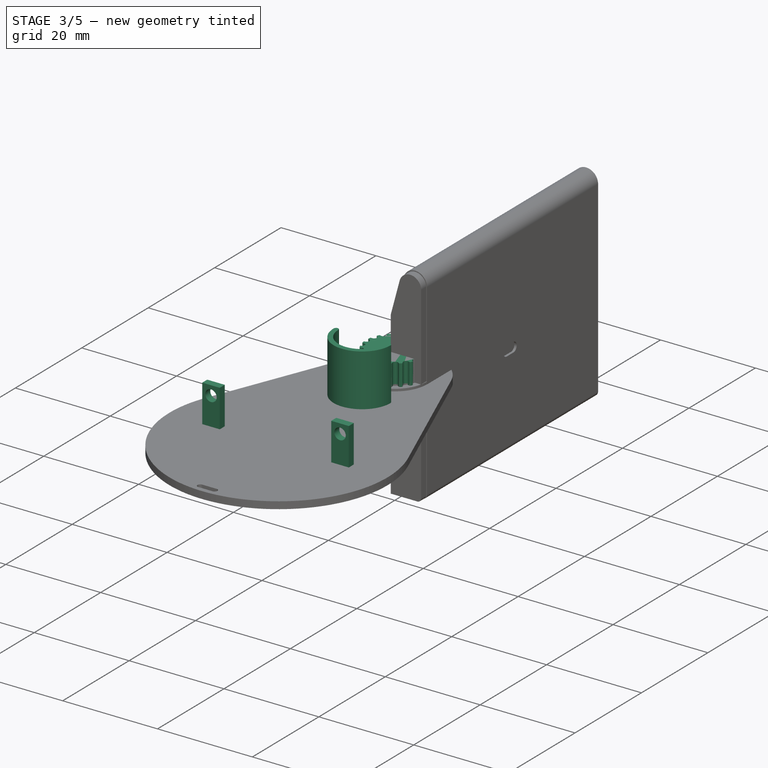
[diagram: stage 3 of 5 — iso view after this stage's code; geometry added in this stage tinted green]
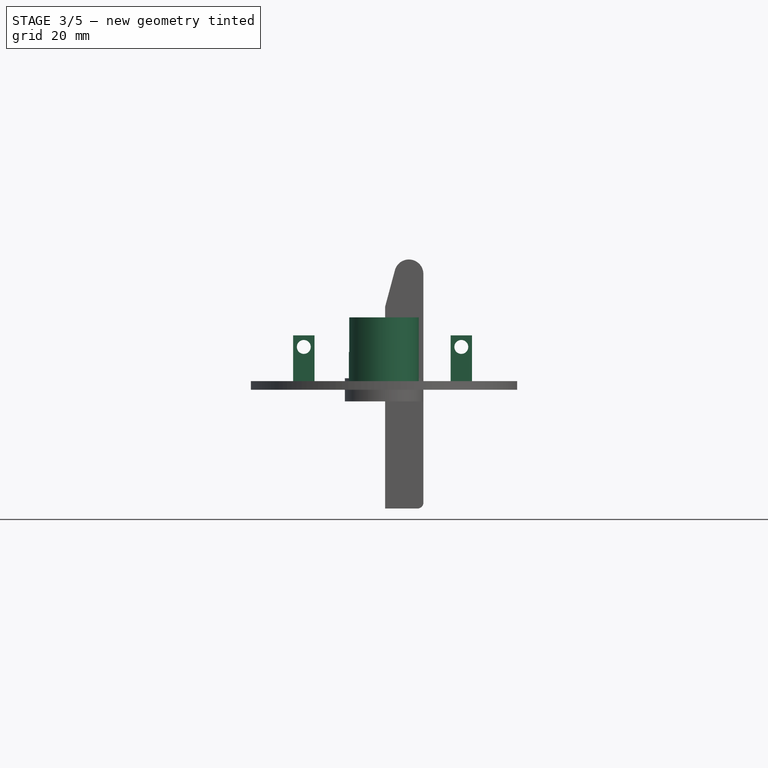
[diagram: stage 3 of 5 — front view after this stage's code; geometry added in this stage tinted green]
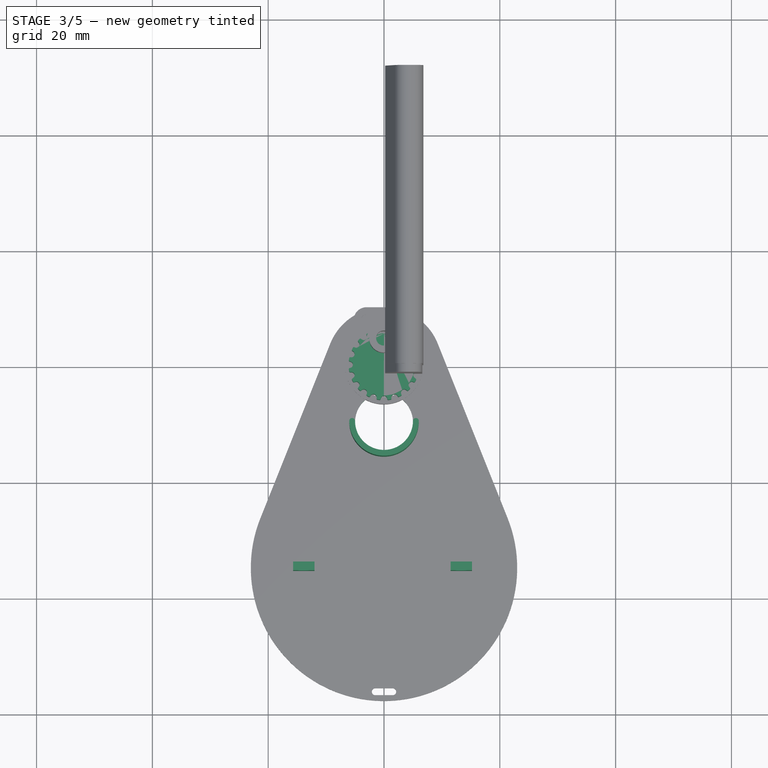
[diagram: stage 3 of 5 — top view after this stage's code; geometry added in this stage tinted green]
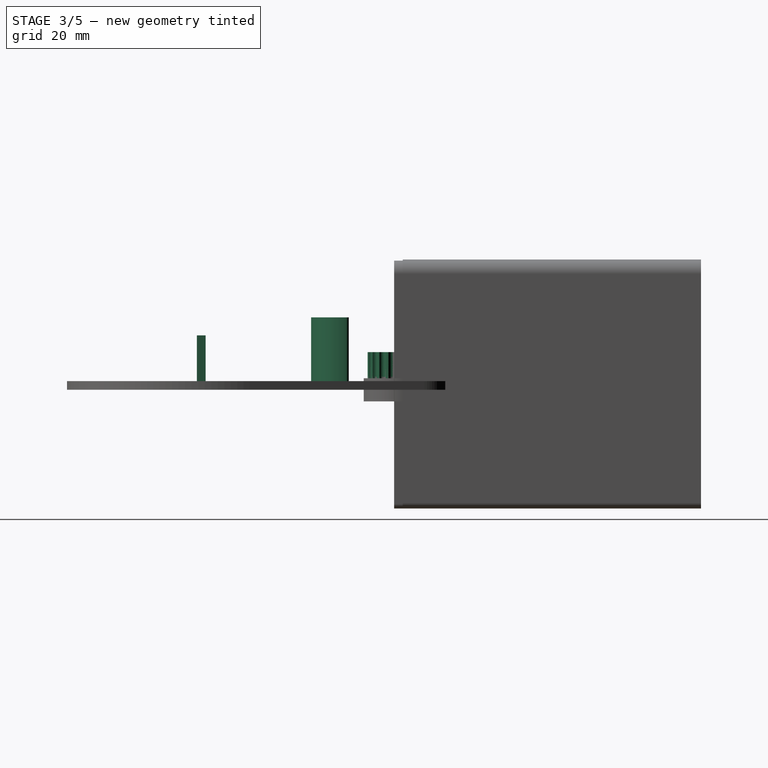
[diagram: stage 3 of 5 — right view after this stage's code; geometry added in this stage tinted green]
FEATURE [PartDesign::Body] Body008  label="Aligner"
  AllowCompound = false
  Group = -> [Binder005,Pad016]
  Origin = -> Origin018
  Tip = -> Pad016
FEATURE [Part::FeaturePython] TimingGear  label="TimingGear002"  # WARN: FeaturePython — macro-defined, semantics opaque (R4)
  AttacherType = Attacher::AttachEngine3D
  Placement = pos=(40.7,25,-9.35) rot=(0.57735,0.57735,0.57735;2.0944rad)
  h = 0.75
  height = 6.5
  num_teeth = 20
  offset = 0.4
  pitch = 2
  r0 = 0.555
  r1 = 1
  rs = 0.15
  type = 0
  u = 0.254
  version = 1.3.0
FEATURE [App::Point] Origin021  label="Origin027"
  Role = Origin
FEATURE [PartDesign::FeatureBase] BaseFeature
  BaseFeature = -> TimingGear
  Suppressed = false
FEATURE [PartDesign::SubShapeBinder] Binder007
  BindCopyOnChange = 0
  BindMode = 2
  ClaimChildren = false
  Context = -> Body010 [Binder007.]
  Fuse = false
  MakeFace = true
  OffsetFill = false
  OffsetIntersection = false
  OffsetJoinType = 0
  OffsetOpenResult = false
  PartialLoad = false
  Refine = true
  Relative = true
  _Version = 2
FEATURE [Sketcher::SketchObject] Sketch030
  ArcFitTolerance = 1e-06
  AttachmentSupport = -> [Pad021]
  ExternalGeometry = -> [Binder007,Pad021]
  ExternalTypes = [0,0]
  FullyConstrained = true
  MakeInternals = true
  MapMode = 5
  Placement = pos=(0,0,1.5) rot=(0,0,1;0rad)
  _ExternalGeoVersion = 0
  sketch-geometry (4):
    g0: Circle CenterX=0 CenterY=-9.82503 CenterZ=0 NormalX=0 NormalY=0 NormalZ=1 AngleXU=0 Radius=5
    g1: Circle [constr] CenterX=-0.057612 CenterY=4.49963 CenterZ=0 NormalX=0 NormalY=0 NormalZ=1 AngleXU=0 Radius=5.5
    g2: LineSegment [constr] StartX=0 StartY=-4.82503 StartZ=0 EndX=0 EndY=-1.00007 EndZ=0
    g3: LineSegment [constr] StartX=0 StartY=-14.825 StartZ=0 EndX=0 EndY=-18.65 EndZ=0
  constraints (13):
    c: PointOnObject(g0,g-2)
    c: Diameter(g1) = 11
    c: Coincident(g1,g-4)
    c: Diameter(g0) = 10
    c: PointOnObject(g2,g0)
    c: PointOnObject(g2,g1)
    c: PointOnObject(g3,g0)
    c: PointOnObject(g3,g-3)
    c: PointOnObject(g3,g-2)
    c: PointOnObject(g3,g-2)
    c: PointOnObject(g2,g-2)
    c: PointOnObject(g2,g-2)
    c: Equal(g2,g3)
FEATURE [PartDesign::Pocket] Pocket010
  BaseFeature = -> Pad021
  Direction = (0,0,-1)
  Length = 5
  Length2 = 5
  Profile = -> Sketch030
  ReferenceAxis = -> Sketch030 [N_Axis]
  Refine = true
  SideType = 0
  Suppressed = false
  Type = 0
  Type2 = 0
FEATURE [Sketcher::SketchObject] Sketch031
  ArcFitTolerance = 1e-06
  AttachmentSupport = -> [Pocket010]
  ExternalGeometry = -> [Pocket010]
  ExternalTypes = [0]
  FullyConstrained = true
  MakeInternals = true
  MapMode = 5
  Placement = pos=(0,0,1.5) rot=(0,0,1;0rad)
  _ExternalGeoVersion = 0
  sketch-geometry (4):
    g0: ArcOfCircle CenterX=0 CenterY=-9.82503 CenterZ=0 NormalX=0 NormalY=0 NormalZ=1 AngleXU=0 Radius=6 StartAngle=3.14159 EndAngle=6.28319
    g1: ArcOfCircle CenterX=-5.5 CenterY=-9.82503 CenterZ=0 NormalX=0 NormalY=0 NormalZ=1 AngleXU=0 Radius=0.5 StartAngle=-9e-16 EndAngle=3.14159
    g2: ArcOfCircle CenterX=5.5 CenterY=-9.82503 CenterZ=0 NormalX=0 NormalY=0 NormalZ=1 AngleXU=0 Radius=0.5 StartAngle=-3.38e-14 EndAngle=3.14159
    g3: ArcOfCircle CenterX=0 CenterY=-9.82503 CenterZ=0 NormalX=0 NormalY=0 NormalZ=1 AngleXU=0 Radius=5 StartAngle=3.14159 EndAngle=6.28319
  constraints (10):
    c: Coincident(g0,g3)
    c: Tangent(g3,g2) = 1.5708
    c: Tangent(g3,g1) = 1.5708
    c: Tangent(g0,g2) = -1.5708
    c: Tangent(g0,g1) = -1.5708
    c: Radius(g2) = 0.5
    c: Coincident(g0,g-3)
    c: Tangent(g3,g-3)
    c: Horizontal(g1,g2)
    c: Horizontal(g1,g0)
FEATURE [PartDesign::Pad] Pad022
  BaseFeature = -> Pocket010
  Direction = (0,0,1)
  Length = 11
  Length2 = 10
  Profile = -> Sketch031
  ReferenceAxis = -> Sketch031 [N_Axis]
  Refine = true
  SideType = 0
  Suppressed = false
  Type = 0
  Type2 = 0
FEATURE [PartDesign::Mirrored] Mirrored003
  BaseFeature = -> Pad022
  MirrorPlane = -> Sketch031 [V_Axis]
  Originals = -> [Pad022]
  Refine = true
  Suppressed = false
  TransformMode = 0
FEATURE [PartDesign::SubShapeBinder] Binder008
  BindCopyOnChange = 0
  BindMode = 2
  ClaimChildren = false
  Context = -> Body010 [Binder008.]
  Fuse = false
  MakeFace = true
  OffsetFill = false
  OffsetIntersection = false
  OffsetJoinType = 0
  OffsetOpenResult = false
  PartialLoad = false
  Refine = true
  Relative = true
  _Version = 2
FEATURE [Sketcher::SketchObject] Sketch032
  ArcFitTolerance = 1e-06
  AttachmentSupport = -> [Binder008]
  ExternalGeometry = -> [Binder008,Mirrored003]
  ExternalTypes = [0,0,0,0,0]
  FullyConstrained = true
  MakeInternals = true
  MapMode = 5
  Placement = pos=(0,-35.55,0) rot=(0,0.707107,0.707107;3.14159rad)
  _ExternalGeoVersion = 0
  sketch-geometry (18):
    g0: LineSegment StartX=-11.5 StartY=1.5 StartZ=0 EndX=-11.5 EndY=9.4 EndZ=0
    g1: LineSegment StartX=-11.5 StartY=9.4 StartZ=0 EndX=-15.2 EndY=9.4 EndZ=0
    g2: LineSegment StartX=-15.2 StartY=9.4 StartZ=0 EndX=-15.2 EndY=1.5 EndZ=0
    g3: LineSegment StartX=-15.2 StartY=1.5 StartZ=0 EndX=-11.5 EndY=1.5 EndZ=0
    g4: LineSegment [constr] StartX=-11.5 StartY=9.4 StartZ=0 EndX=-11 EndY=9.4 EndZ=0
    g5: LineSegment [constr] StartX=-13.35 StartY=9.4 StartZ=0 EndX=-13.35 EndY=8.4 EndZ=0
    g6: LineSegment [constr] StartX=-13.35 StartY=8.4 StartZ=0 EndX=-13.35 EndY=7.4 EndZ=0
    g7: Circle CenterX=-13.35 CenterY=7.4 CenterZ=0 NormalX=0 NormalY=0 NormalZ=1 AngleXU=0 Radius=1.2
    g8: LineSegment [constr] StartX=-13.35 StartY=6.4 StartZ=0 EndX=-13.35 EndY=6.2 EndZ=0
    g9: LineSegment StartX=12 StartY=9.4 StartZ=0 EndX=12 EndY=1.5 EndZ=0
    g10: LineSegment StartX=12 StartY=1.5 StartZ=0 EndX=15.7 EndY=1.5 EndZ=0
    g11: LineSegment StartX=15.7 StartY=1.5 StartZ=0 EndX=15.7 EndY=9.4 EndZ=0
    g12: LineSegment StartX=15.7 StartY=9.4 StartZ=0 EndX=12 EndY=9.4 EndZ=0
    g13: LineSegment [constr] StartX=12 StartY=9.4 StartZ=0 EndX=11.5 EndY=9.4 EndZ=0
    g14: LineSegment [constr] StartX=13.85 StartY=7.4 StartZ=0 EndX=13.85 EndY=8.4 EndZ=0
    g15: LineSegment [constr] StartX=13.85 StartY=8.4 StartZ=0 EndX=13.85 EndY=9.4 EndZ=0
    g16: Circle CenterX=13.85 CenterY=7.4 CenterZ=0 NormalX=0 NormalY=0 NormalZ=1 AngleXU=0 Radius=1.2
    g17: LineSegment [constr] StartX=13.85 StartY=6.4 StartZ=0 EndX=13.85 EndY=6.2 EndZ=0
  constraints (50):
    c: Coincident(g0,g1)
    c: Coincident(g1,g2)
    c: Coincident(g2,g3)
    c: Coincident(g3,g0)
    c: Vertical(g0)
    c: Vertical(g2)
    c: Horizontal(g1)
    c: Horizontal(g3)
    c: PointOnObject(g0,g-7)
    c: Coincident(g4,g0)
    c: PointOnObject(g4,g-3)
    c: Horizontal(g4)
    c: Distance(g4,g4) = 0.5
    c: Symmetric(g1,g1,g5)
    c: Coincident(g6,g-6)
    c: Vertical(g5)
    c: Vertical(g6)
    c: Coincident(g5,g6)
    c: PointOnObject(g5,g-6)
    c: Distance(g5,g5) = 1
    c: Coincident(g6,g7)
    c: Coincident(g8,g-6)
    c: PointOnObject(g8,g7)
    c: Vertical(g8)
    c: Coincident(g9,g10)
    c: Coincident(g10,g11)
    c: Coincident(g11,g12)
    c: Coincident(g12,g9)
    c: Vertical(g9)
    c: Vertical(g11)
    c: Horizontal(g10)
    c: Horizontal(g12)
    c: PointOnObject(g10,g-7)
    c: Coincident(g13,g9)
    c: PointOnObject(g13,g-4)
    c: Horizontal(g13)
    c: Equal(g13,g4)
    c: Coincident(g14,g-5)
    c: PointOnObject(g14,g-5)
    c: Vertical(g14)
    c: Coincident(g15,g14)
    c: Symmetric(g12,g12,g15)
    c: Vertical(g15)
    c: Equal(g5,g15)
    c: Coincident(g16,g14)
    c: Coincident(g17,g-5)
    c: PointOnObject(g17,g16)
    c: Vertical(g17)
    c: Equal(g17,g8)
    c: Distance(g8,g8) = 0.2
FEATURE [PartDesign::Pad] Pad023
  BaseFeature = -> Mirrored003
  Direction = (0,1,-2e-16)
  Length = 1.5
  Length2 = 10
  Profile = -> Sketch032
  ReferenceAxis = -> Sketch032 [N_Axis]
  Refine = true
  SideType = 0
  Suppressed = false
  Type = 0
  Type2 = 0
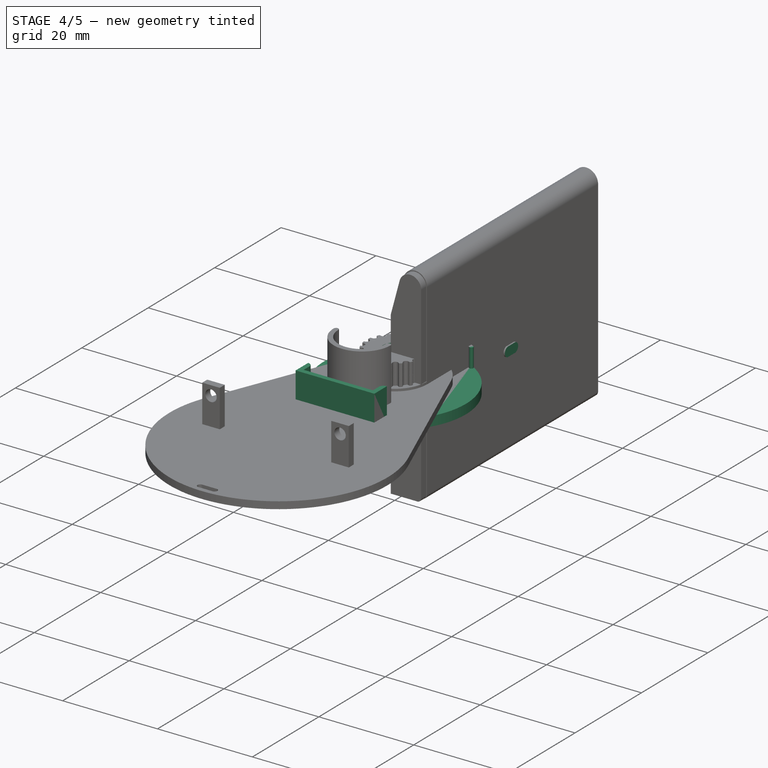
[diagram: stage 4 of 5 — iso view after this stage's code; geometry added in this stage tinted green]
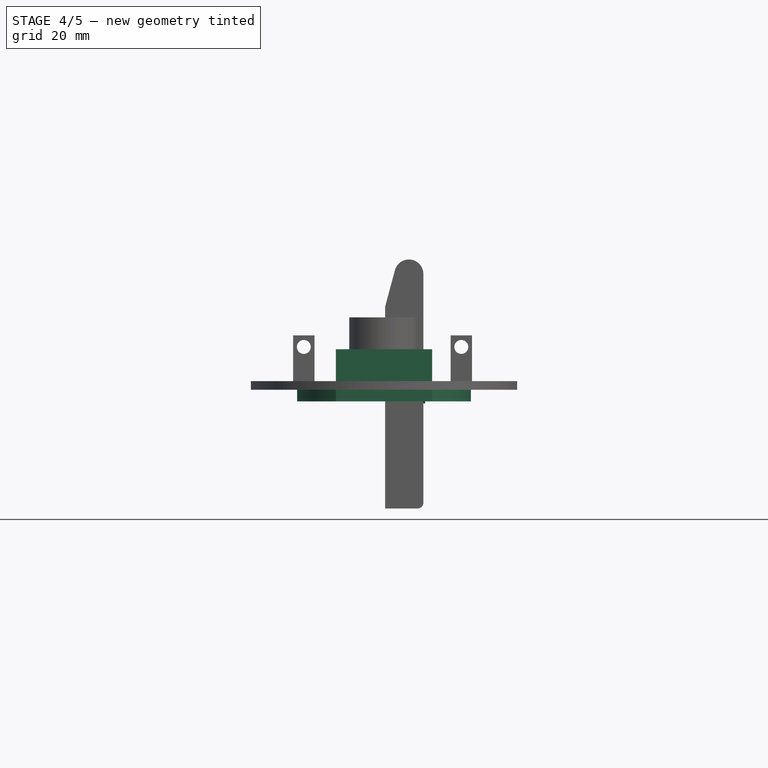
[diagram: stage 4 of 5 — front view after this stage's code; geometry added in this stage tinted green]
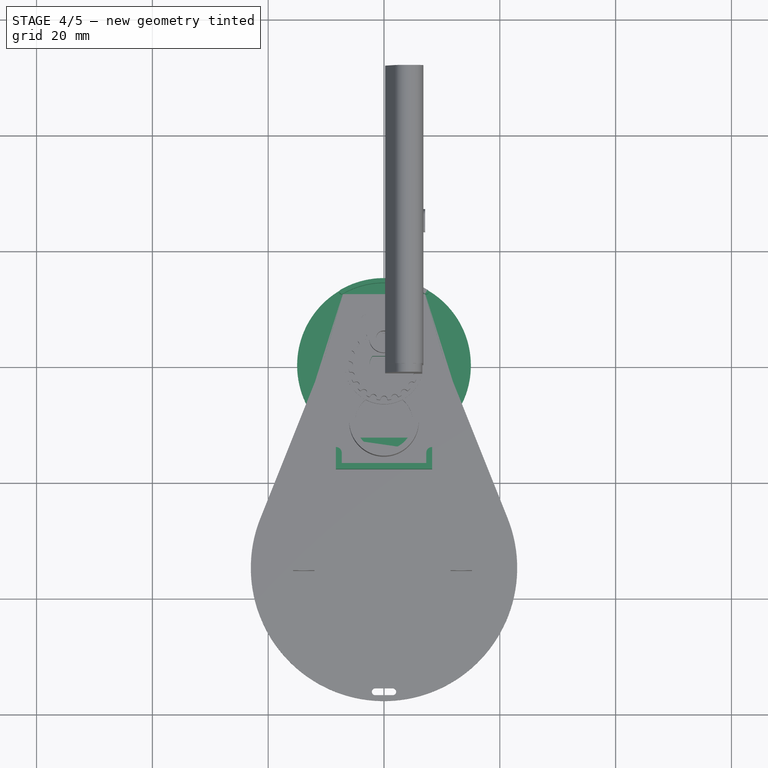
[diagram: stage 4 of 5 — top view after this stage's code; geometry added in this stage tinted green]
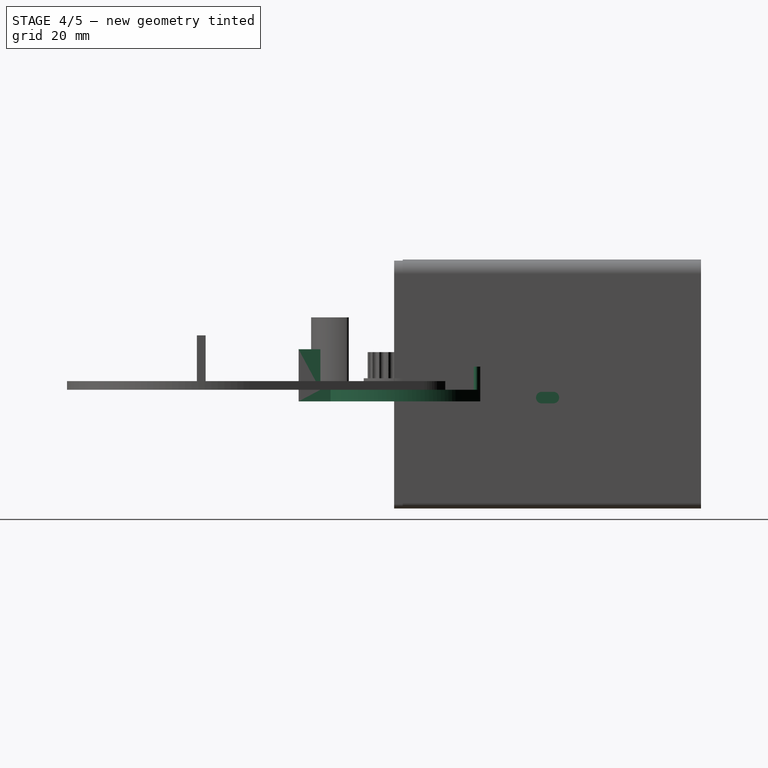
[diagram: stage 4 of 5 — right view after this stage's code; geometry added in this stage tinted green]
FEATURE [Sketcher::SketchObject] Sketch012
  ArcFitTolerance = 1e-06
  AttachmentSupport = -> [Pad010]
  ExternalGeometry = -> [Pad010]
  ExternalTypes = [0,0]
  FullyConstrained = true
  MakeInternals = true
  MapMode = 5
  Placement = pos=(0,1.4e-15,0) rot=(1,0,0;1.5708rad)
  _ExternalGeoVersion = 0
FEATURE [App::Point] Origin017  label="Origin022"
  Role = Origin
FEATURE [PartDesign::SubShapeBinder] Binder003
  BindCopyOnChange = 0
  BindMode = 2
  ClaimChildren = false
  Context = -> Body007 [Binder003.]
  Fuse = false
  MakeFace = true
  OffsetFill = false
  OffsetIntersection = false
  OffsetJoinType = 0
  OffsetOpenResult = false
  PartialLoad = false
  Refine = true
  Relative = true
  _Version = 2
FEATURE [Sketcher::SketchObject] Sketch013
  ArcFitTolerance = 1e-06
  AttachmentSupport = -> [Binder003]
  ExternalGeometry = -> [Binder003]
  ExternalTypes = [0,0,0]
  FullyConstrained = true
  MakeInternals = true
  MapMode = 5
  Placement = pos=(0,0,0) rot=(1,0,0;3.14159rad)
  _ExternalGeoVersion = 0
  sketch-geometry (6):
    g0: ArcOfCircle CenterX=0 CenterY=0 CenterZ=0 NormalX=0 NormalY=0 NormalZ=1 AngleXU=0 Radius=15 StartAngle=2.15716 EndAngle=7.26762
    g1: LineSegment StartX=-8.3 StartY=12.4944 StartZ=0 EndX=-8.3 EndY=18 EndZ=0
    g2: LineSegment StartX=-8.3 StartY=18 StartZ=0 EndX=8.3 EndY=18 EndZ=0
    g3: LineSegment StartX=8.3 StartY=18 StartZ=0 EndX=8.3 EndY=12.4944 EndZ=0
    g4: LineSegment [constr] StartX=-7.3 StartY=17 StartZ=0 EndX=-8.3 EndY=17 EndZ=0
    g5: LineSegment [constr] StartX=-7.3 StartY=17 StartZ=0 EndX=-7.3 EndY=18 EndZ=0
  constraints (18):
    c: Coincident(g0,g-1)
    c: Coincident(g1,g0)
    c: Vertical(g1)
    c: Coincident(g1,g2)
    c: Horizontal(g2)
    c: Coincident(g2,g3)
    c: Coincident(g3,g0)
    c: Vertical(g3)
    c: Symmetric(g0,g0,g-2)
    c: Distance(g-4,g0) = 1
    c: Coincident(g4,g-5)
    c: PointOnObject(g4,g1)
    c: Horizontal(g4)
    c: Coincident(g5,g4)
    c: PointOnObject(g5,g2)
    c: Vertical(g5)
    c: Equal(g4,g5)
    c: Distance(g5,g5) = 1
FEATURE [PartDesign::Pad] Pad011
  Direction = (0,0,-1)
  Length = 2
  Length2 = 10
  Profile = -> Sketch013
  ReferenceAxis = -> Sketch013 [N_Axis]
  Refine = true
  SideType = 0
  Suppressed = false
  Type = 0
  Type2 = 0
FEATURE [Sketcher::SketchObject] Sketch014
  ArcFitTolerance = 1e-06
  AttachmentSupport = -> [Pad011]
  ExternalGeometry = -> [Pad011,Binder003]
  ExternalTypes = [0,0,0,0]
  FullyConstrained = true
  MakeInternals = true
  MapMode = 5
  _ExternalGeoVersion = 0
  sketch-geometry (7):
    g0: LineSegment StartX=-8.3 StartY=-18 StartZ=0 EndX=-8.3 EndY=-14.2376 EndZ=0
    g1: LineSegment StartX=-7.3 StartY=-15.2376 StartZ=0 EndX=-7.3 EndY=-17 EndZ=0
    g2: LineSegment StartX=-7.3 StartY=-17 StartZ=0 EndX=7.3 EndY=-17 EndZ=0
    g3: ArcOfCircle CenterX=-8.3 CenterY=-15.2376 CenterZ=0 NormalX=0 NormalY=0 NormalZ=1 AngleXU=0 Radius=1 StartAngle=0 EndAngle=1.5708
    g4: LineSegment StartX=8.3 StartY=-18 StartZ=0 EndX=8.3 EndY=-14.2376 EndZ=0
    g5: ArcOfCircle CenterX=8.3 CenterY=-15.2376 CenterZ=0 NormalX=0 NormalY=0 NormalZ=1 AngleXU=0 Radius=1 StartAngle=1.5708 EndAngle=3.14159
    g6: LineSegment StartX=7.3 StartY=-15.2376 StartZ=0 EndX=7.3 EndY=-17 EndZ=0
  constraints (17):
    c: PointOnObject(g0,g-3)
    c: Vertical(g1)
    c: Coincident(g1,g2)
    c: Coincident(g-4,g0)
    c: Tangent(g1,g3) = 1.5708
    c: Coincident(g0,g3)
    c: PointOnObject(g3,g0)
    c: Horizontal(g0,g-5)
    c: Symmetric(g0,g4,g-2)
    c: Symmetric(g0,g4,g-2)
    c: Symmetric(g1,g6,g-2)
    c: Symmetric(g1,g6,g-2)
    c: Equal(g3,g5)
    c: Symmetric(g3,g5,g-2)
    c: Symmetric(g3,g5,g-2)
    c: Coincident(g2,g6)
    c: Coincident(g1,g-6)
FEATURE [PartDesign::Pad] Pad012
  BaseFeature = -> Pad011
  Direction = (0,0,1)
  Length = 7
  Length2 = 10
  Profile = -> Sketch014
  ReferenceAxis = -> Sketch014 [N_Axis]
  Refine = true
  SideType = 0
  Suppressed = false
  Type = 0
  Type2 = 0
FEATURE [Sketcher::SketchObject] Sketch015
  ArcFitTolerance = 1e-06
  AttachmentSupport = -> [Pad012]
  ExternalGeometry = -> [Binder003,Pad012]
  ExternalTypes = [0,0]
  FullyConstrained = true
  MakeInternals = true
  MapMode = 5
  _ExternalGeoVersion = 0
  sketch-geometry (7):
    g0: ArcOfCircle CenterX=0 CenterY=0 CenterZ=0 NormalX=0 NormalY=0 NormalZ=1 AngleXU=0 Radius=15 StartAngle=1.0472 EndAngle=2.0944
    g1: ArcOfCircle CenterX=-7.3 CenterY=12.644 CenterZ=0 NormalX=0 NormalY=0 NormalZ=1 AngleXU=0 Radius=0.4 StartAngle=2.0944 EndAngle=5.23599
    g2: ArcOfCircle CenterX=7.3 CenterY=12.644 CenterZ=0 NormalX=0 NormalY=0 NormalZ=1 AngleXU=0 Radius=0.4 StartAngle=4.18879 EndAngle=7.33038
    g3: ArcOfCircle CenterX=0 CenterY=0 CenterZ=0 NormalX=0 NormalY=0 NormalZ=1 AngleXU=0 Radius=14.2 StartAngle=1.0472 EndAngle=2.0944
    g4: LineSegment [constr] StartX=-7.1 StartY=12.2976 StartZ=0 EndX=0 EndY=12.2976 EndZ=0
    g5: LineSegment [constr] StartX=0 StartY=12.2976 StartZ=0 EndX=7.1 EndY=12.2976 EndZ=0
    g6: LineSegment [constr] StartX=7.1 StartY=12.2976 StartZ=0 EndX=0 EndY=0 EndZ=0
  constraints (17):
    c: Coincident(g0,g3)
    c: Tangent(g3,g2) = 1.5708
    c: Tangent(g3,g1) = 1.5708
    c: Tangent(g0,g2) = -1.5708
    c: Tangent(g0,g1) = -1.5708
    c: Coincident(g0,g-4)
    c: Coincident(g4,g1)
    c: PointOnObject(g4,g-2)
    c: Horizontal(g4)
    c: Coincident(g5,g4)
    c: Coincident(g5,g2)
    c: Equal(g5,g4)
    c: Tangent(g-4,g0)
    c: Distance(g-3,g3) = 0.2
    c: Coincident(g6,g2)
    c: Coincident(g6,g0)
    c: Angle(g6,g-2) = 0.523599
FEATURE [PartDesign::Pad] Pad013
  BaseFeature = -> Pad012
  Direction = (0,0,1)
  Length = 4
  Length2 = 10
  Profile = -> Sketch015
  ReferenceAxis = -> Sketch015 [N_Axis]
  Refine = true
  SideType = 0
  Suppressed = false
  Type = 0
  Type2 = 0
FEATURE [PartDesign::Body] Body006  label="HookPad"
  AllowCompound = false
  Group = -> [Binder002,Sketch010,Pad009,Sketch011,Pad010,Sketch012,Binder004,Sketch021,Pocket007]
  Origin = -> Origin014
  Tip = -> Pocket007
FEATURE [App::Point] Origin019  label="Origin024"
  Role = Origin
FEATURE [PartDesign::SubShapeBinder] Binder005
  BindCopyOnChange = 0
  BindMode = 2
  ClaimChildren = false
  Context = -> Body008 [Binder005.]
  Fuse = false
  MakeFace = true
  OffsetFill = false
  OffsetIntersection = false
  OffsetJoinType = 0
  OffsetOpenResult = false
  PartialLoad = false
  Refine = true
  Relative = true
  _Version = 2
FEATURE [PartDesign::Pad] Pad016
  Direction = (1,0,0)
  Length = 1
  Length2 = 10
  Profile = -> Binder005
  Refine = true
  SideType = 0
  Suppressed = false
  Type = 0
  Type2 = 0
FEATURE [PartDesign::SubShapeBinder] Binder006
  BindCopyOnChange = 0
  BindMode = 2
  ClaimChildren = false
  Context = -> Body009 [Binder006.]
  Fuse = false
  MakeFace = true
  OffsetFill = false
  OffsetIntersection = false
  OffsetJoinType = 0
  OffsetOpenResult = false
  PartialLoad = false
  Refine = true
  Relative = true
  _Version = 2
FEATURE [PartDesign::Pocket] Pocket008
  BaseFeature = -> BaseFeature
  Direction = (0,0,-1)
  Length = 5
  Length2 = 5
  Profile = -> Binder006 [Face1]
  Refine = true
  SideType = 0
  Suppressed = false
  Type = 3
  Type2 = 0
  UpToFace = -> BaseFeature [Face121]
FEATURE [Sketcher::SketchObject] Sketch022
  ArcFitTolerance = 1e-06
  AttachmentSupport = -> [Pocket008]
  ExternalGeometry = -> [Pocket008]
  ExternalTypes = [0]
  FullyConstrained = true
  MakeInternals = true
  MapMode = 5
  Placement = pos=(0,0,0) rot=(1,0,0;3.14159rad)
  _ExternalGeoVersion = 0
  expr: Constraints[13] = 360 ° / 8 / 2
  sketch-geometry (6):
    g0: ArcOfCircle CenterX=4.8 CenterY=0 CenterZ=0 NormalX=0 NormalY=0 NormalZ=1 AngleXU=0 Radius=0.8 StartAngle=1.9635 EndAngle=4.31969
    g1: ArcOfCircle CenterX=10.5135 CenterY=0 CenterZ=0 NormalX=0 NormalY=0 NormalZ=1 AngleXU=0 Radius=2.98647 StartAngle=4.31969 EndAngle=8.24668
    g2: LineSegment StartX=4.49385 StartY=0.739104 StartZ=0 EndX=9.37065 EndY=2.75914 EndZ=0
    g3: LineSegment StartX=4.49385 StartY=-0.739104 StartZ=0 EndX=9.37065 EndY=-2.75914 EndZ=0
    g4: GeomPoint [constr] X=4 Y=0 Z=0
    g5: GeomPoint [constr] X=13.5 Y=0 Z=0
  constraints (14):
    c: Tangent(g0,g2) = 1.5708
    c: Tangent(g0,g3) = -1.5708
    c: Tangent(g1,g2) = 1.5708
    c: Tangent(g1,g3) = -1.5708
    c: PointOnObject(g0,g-1)
    c: PointOnObject(g1,g-1)
    c: Radius(g0) = 0.8
    c: PointOnObject(g4,g0)
    c: PointOnObject(g5,g1)
    c: PointOnObject(g5,g-1)
    c: PointOnObject(g4,g-1)
    c: DistanceX(g4,g5) = 9.5
    c: DistanceX(g-1,g4) = 4
    c: Angle(g-1,g2) = 0.392699
FEATURE [PartDesign::Pocket] Pocket009
  BaseFeature = -> Pocket008
  Direction = (0,0,1)
  Length = -2
  Length2 = 5
  Profile = -> Sketch022
  ReferenceAxis = -> Sketch022 [N_Axis]
  Refine = true
  SideType = 0
  Suppressed = false
  Type = 0
  Type2 = 0
FEATURE [PartDesign::PolarPattern] PolarPattern
  Angle = 360
  Axis = -> Sketch022 [N_Axis]
  BaseFeature = -> Pocket009
  Mode = 0
  Occurrences = 8
  Offset = 120
  Originals = -> [Pocket009]
  Refine = true
  SpacingPattern = [0]
  Spacings = [-1,-1,-1,-1,-1,-1,-1]
  Suppressed = false
  TransformMode = 0
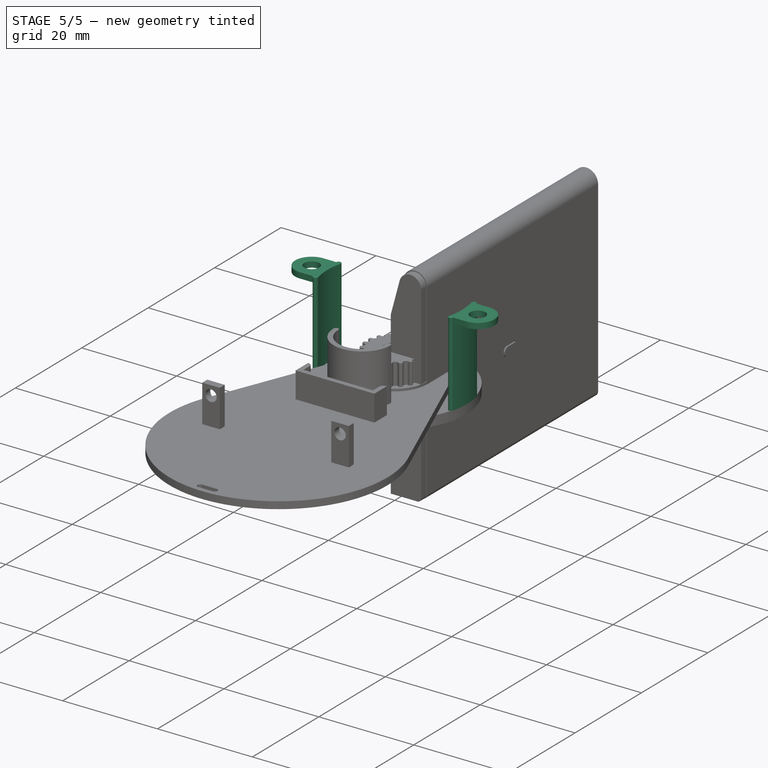
[diagram: stage 5 of 5 — iso view after this stage's code; geometry added in this stage tinted green]
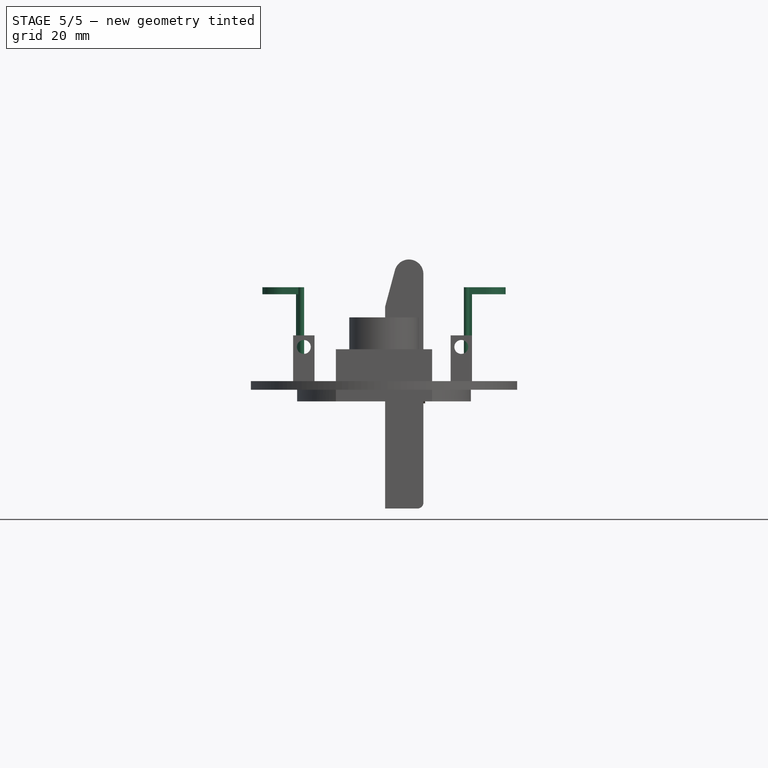
[diagram: stage 5 of 5 — front view after this stage's code; geometry added in this stage tinted green]
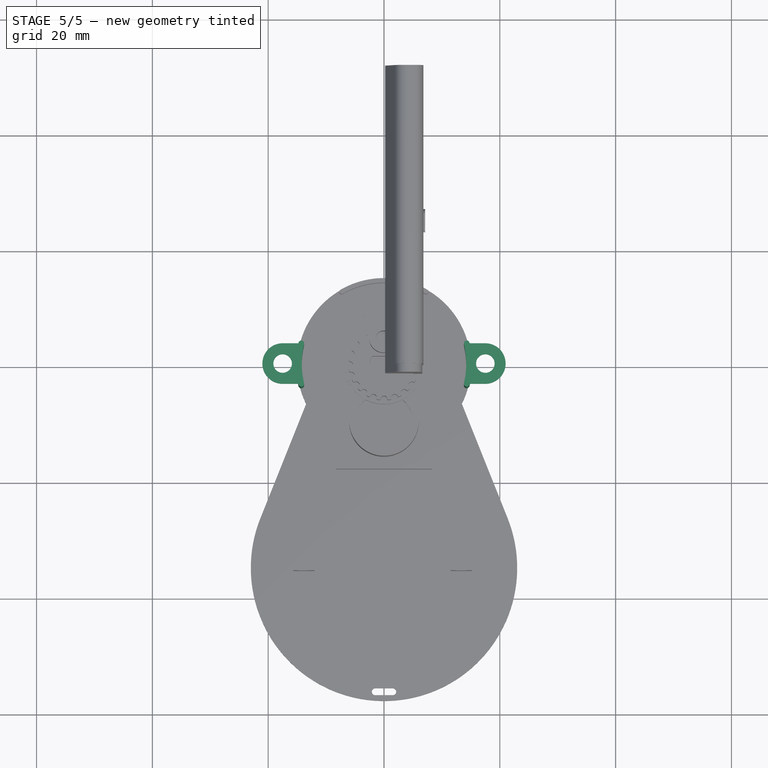
[diagram: stage 5 of 5 — top view after this stage's code; geometry added in this stage tinted green]
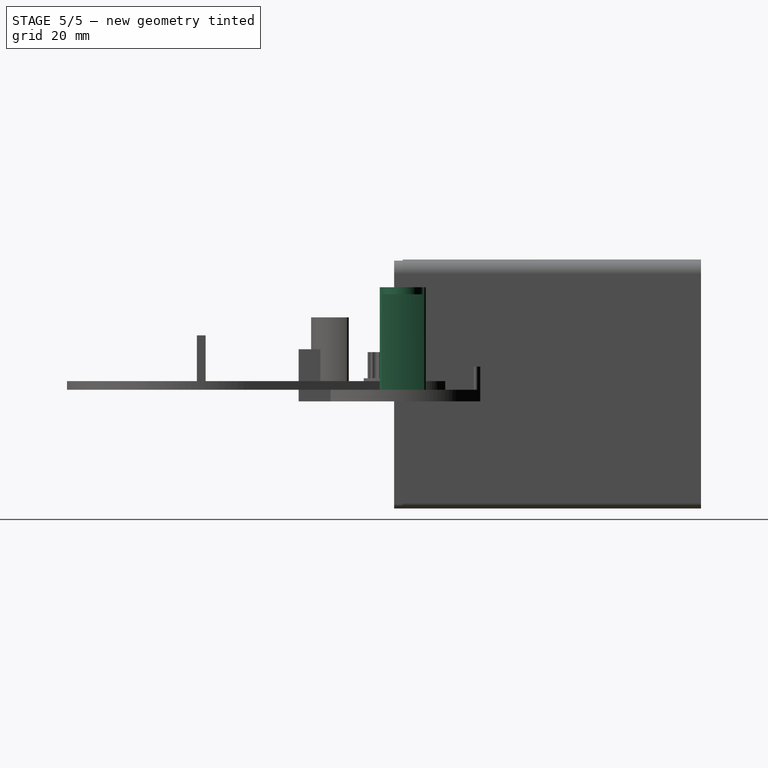
[diagram: stage 5 of 5 — right view after this stage's code; geometry added in this stage tinted green]
FEATURE [Sketcher::SketchObject] Sketch016
  ArcFitTolerance = 1e-06
  AttachmentSupport = -> [Pad013]
  ExternalGeometry = -> [Binder003,Pad013]
  ExternalTypes = [0,0]
  FullyConstrained = false
  MakeInternals = true
  MapMode = 5
  _ExternalGeoVersion = 0
  sketch-geometry (6):
    g0: ArcOfCircle CenterX=0 CenterY=0 CenterZ=0 NormalX=0 NormalY=0 NormalZ=1 AngleXU=0 Radius=15.2 StartAngle=6.04433 EndAngle=6.52204
    g1: ArcOfCircle CenterX=14.2827 CenterY=3.47782 CenterZ=0 NormalX=0 NormalY=0 NormalZ=1 AngleXU=0 Radius=0.5 StartAngle=0.238851 EndAngle=3.38044
    g2: ArcOfCircle CenterX=14.2827 CenterY=-3.47782 CenterZ=0 NormalX=0 NormalY=0 NormalZ=1 AngleXU=0 Radius=0.5 StartAngle=2.90274 EndAngle=6.04433
    g3: ArcOfCircle CenterX=0 CenterY=0 CenterZ=0 NormalX=0 NormalY=0 NormalZ=1 AngleXU=0 Radius=14.2 StartAngle=6.04433 EndAngle=6.52204
    g4: LineSegment [constr] StartX=13.7969 StartY=3.35952 StartZ=0 EndX=13.7969 EndY=0 EndZ=0
    g5: LineSegment [constr] StartX=13.7969 StartY=0 StartZ=0 EndX=13.7969 EndY=-3.35952 EndZ=0
  constraints (14):
    c: Coincident(g0,g3)
    c: Tangent(g3,g2) = 1.5708
    c: Tangent(g3,g1) = 1.5708
    c: Tangent(g0,g2) = -1.5708
    c: Tangent(g0,g1) = -1.5708
    c: Coincident(g0,g-4)
    c: Distance(g-3,g3) = 0.2
    c: Coincident(g4,g1)
    c: PointOnObject(g4,g-1)
    c: Vertical(g4)
    c: Coincident(g5,g2)
    c: Coincident(g4,g5)
    c: Vertical(g5)
    c: Distance(g-4,g0) = 0.2
FEATURE [PartDesign::Pad] Pad014
  BaseFeature = -> Pad013
  Direction = (0,0,1)
  Length = 10
  Length2 = 10
  Offset = -0.5
  Profile = -> Sketch016
  ReferenceAxis = -> Sketch016 [N_Axis]
  Refine = true
  SideType = 0
  Suppressed = false
  Type = 3
  Type2 = 0
  UpToFace = -> Binder003 [Face2]
FEATURE [Part::DatumPlane] DatumPlane001
  AttachmentSupport = -> [Pad014]
  MapMode = 45
  Placement = pos=(15.0559,-3.7e-15,8.85) rot=(0.57735,0.57735,0.57735;2.0944rad)
FEATURE [Sketcher::SketchObject] Sketch017
  ArcFitTolerance = 1e-06
  AttachmentSupport = -> [DatumPlane001]
  ExternalGeometry = -> [Pad014]
  ExternalTypes = [0,0]
  FullyConstrained = true
  MakeInternals = true
  MapMode = 5
  Placement = pos=(15.0559,-3.7e-15,8.85) rot=(0.57735,0.57735,0.57735;2.0944rad)
  _ExternalGeoVersion = 0
  sketch-geometry (4):
    g0: LineSegment StartX=-3.59611 StartY=8.85 StartZ=0 EndX=-3.59611 EndY=7.65 EndZ=0
    g1: LineSegment StartX=-3.59611 StartY=7.65 StartZ=0 EndX=3.59611 EndY=7.65 EndZ=0
    g2: LineSegment StartX=3.59611 StartY=7.65 StartZ=0 EndX=3.59611 EndY=8.85 EndZ=0
    g3: LineSegment StartX=3.59611 StartY=8.85 StartZ=0 EndX=-3.59611 EndY=8.85 EndZ=0
  constraints (11):
    c: Coincident(g0,g1)
    c: Coincident(g1,g2)
    c: Coincident(g2,g3)
    c: Coincident(g3,g0)
    c: Vertical(g0)
    c: Vertical(g2)
    c: Horizontal(g1)
    c: Horizontal(g3)
    c: PointOnObject(g2,g-4)
    c: DistanceY(g0,g0) = 1.2
    c: Coincident(g0,g-3)
FEATURE [PartDesign::Pad] Pad015
  BaseFeature = -> Pad014
  Direction = (1,0,0)
  Length = 6
  Length2 = 0.5
  Profile = -> Sketch017
  ReferenceAxis = -> Sketch017 [N_Axis]
  Refine = true
  SideType = 1
  Suppressed = false
  Type = 0
  Type2 = 0
FEATURE [Sketcher::SketchObject] Sketch018
  ArcFitTolerance = 1e-06
  AttachmentSupport = -> [Pad015]
  ExternalGeometry = -> [Binder003,Pad015]
  ExternalTypes = [0,0,0]
  FullyConstrained = false
  MakeInternals = true
  MapMode = 5
  Placement = pos=(0,0,17.7) rot=(0,0,1;0rad)
  _ExternalGeoVersion = 0
  sketch-geometry (8):
    g0: LineSegment StartX=17.5 StartY=3.5 StartZ=0 EndX=14.7685 EndY=3.5 EndZ=0
    g1: LineSegment StartX=14.7685 StartY=3.5 StartZ=0 EndX=14.7685 EndY=4 EndZ=0
    g2: LineSegment StartX=14.7685 StartY=4 StartZ=0 EndX=22.7685 EndY=4 EndZ=0
    g3: LineSegment StartX=22.7685 StartY=4 StartZ=0 EndX=22.7685 EndY=-4 EndZ=0
    g4: LineSegment StartX=22.7685 StartY=-4 StartZ=0 EndX=14.7685 EndY=-4 EndZ=0
    g5: LineSegment StartX=17.5 StartY=-3.5 StartZ=0 EndX=14.7916 EndY=-3.5 EndZ=0
    g6: ArcOfCircle CenterX=9.41e-14 CenterY=3.936e-13 CenterZ=0 NormalX=0 NormalY=0 NormalZ=1 AngleXU=0 Radius=15.2 StartAngle=6.04433 EndAngle=6.05084
    g7: LineSegment StartX=14.7685 StartY=-3.59611 StartZ=0 EndX=14.7685 EndY=-4 EndZ=0
  constraints (22):
    c: Coincident(g0,g-3)
    c: Horizontal(g0)
    c: Coincident(g0,g1)
    c: Vertical(g1)
    c: Coincident(g1,g2)
    c: Horizontal(g2)
    c: Coincident(g2,g3)
    c: Vertical(g3)
    c: Coincident(g3,g4)
    c: Horizontal(g4)
    c: Coincident(g5,g-3)
    c: Horizontal(g5)
    c: PointOnObject(g4,g1)
    c: PointOnObject(g5,g-5)
    c: Equal(g4,g3)
    c: DistanceY(g3,g3) = 8
    c: Coincident(g6,g5)
    c: Coincident(g6,g-5)
    c: Equal(g-5,g6)
    c: Coincident(g7,g6)
    c: Coincident(g7,g4)
    c: Vertical(g7)
FEATURE [PartDesign::Pocket] Pocket004
  BaseFeature = -> Pad015
  Direction = (0,0,-1)
  Length = 5
  Length2 = 5
  Profile = -> Sketch018
  ReferenceAxis = -> Sketch018 [N_Axis]
  Refine = true
  SideType = 0
  Suppressed = false
  Type = 3
  Type2 = 0
  UpToFace = -> Pad015 [Face24]
FEATURE [Sketcher::SketchObject] Sketch019
  ArcFitTolerance = 1e-06
  AttachmentSupport = -> [Pocket004]
  ExternalGeometry = -> [Binder003]
  ExternalTypes = [0]
  FullyConstrained = true
  MakeInternals = true
  MapMode = 5
  Placement = pos=(0,0,17.7) rot=(0,0,1;0rad)
  _ExternalGeoVersion = 0
  sketch-geometry (1):
    g0: Circle CenterX=17.5 CenterY=0 CenterZ=0 NormalX=0 NormalY=0 NormalZ=1 AngleXU=0 Radius=1.6
  constraints (2):
    c: Coincident(g0,g-3)
    c: Diameter(g0) = 3.2
FEATURE [PartDesign::Pocket] Pocket005
  BaseFeature = -> Pocket004
  Direction = (0,0,-1)
  Length = 5
  Length2 = 5
  Profile = -> Sketch019
  ReferenceAxis = -> Sketch019 [N_Axis]
  Refine = true
  SideType = 0
  Suppressed = false
  Type = 3
  Type2 = 0
  UpToFace = -> Pocket004 [Face25]
FEATURE [PartDesign::Mirrored] Mirrored002
  BaseFeature = -> Pocket005
  MirrorPlane = -> YZ_Plane008
  Refine = true
  Suppressed = false
  TransformMode = 1
FEATURE [Sketcher::SketchObject] Sketch020
  ArcFitTolerance = 1e-06
  AttachmentSupport = -> [Mirrored002]
  ExternalTypes = [0]
  FullyConstrained = true
  MakeInternals = true
  MapMode = 5
  Placement = pos=(0,0,-2) rot=(1,0,0;3.14159rad)
  _ExternalGeoVersion = 0
  sketch-geometry (4):
    g0: ArcOfCircle CenterX=-1 CenterY=0 CenterZ=0 NormalX=0 NormalY=0 NormalZ=1 AngleXU=0 Radius=1 StartAngle=1.5708 EndAngle=4.71239
    g1: ArcOfCircle CenterX=1 CenterY=0 CenterZ=0 NormalX=0 NormalY=0 NormalZ=1 AngleXU=0 Radius=1 StartAngle=4.71239 EndAngle=7.85398
    g2: LineSegment StartX=-1 StartY=1 StartZ=0 EndX=1 EndY=1 EndZ=0
    g3: LineSegment StartX=-1 StartY=-1 StartZ=0 EndX=1 EndY=-1 EndZ=0
  constraints (9):
    c: Tangent(g0,g2) = 1.5708
    c: Tangent(g0,g3) = -1.5708
    c: Tangent(g1,g2) = 1.5708
    c: Tangent(g1,g3) = -1.5708
    c: Equal(g0,g1)
    c: PointOnObject(g0,g-1)
    c: Distance(g2,g2) = 2
    c: Radius(g1) = 1
    c: Symmetric(g0,g1,g-2)
FEATURE [PartDesign::Pocket] Pocket006
  BaseFeature = -> Mirrored002
  Direction = (0,0,1)
  Length = 0.5
  Length2 = 5
  Profile = -> Sketch020
  ReferenceAxis = -> Sketch020 [N_Axis]
  Refine = true
  SideType = 0
  Suppressed = false
  Type = 0
  Type2 = 0
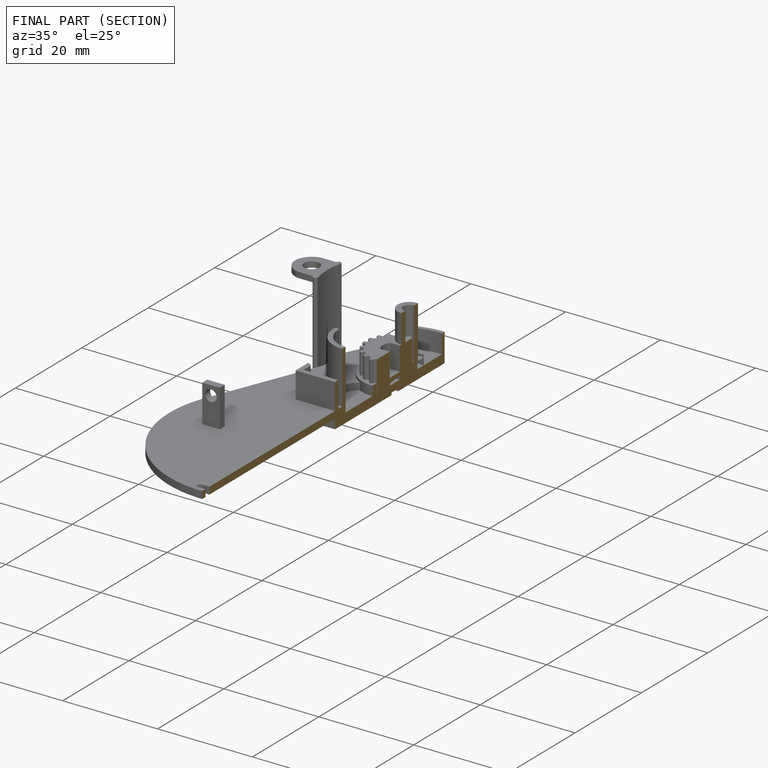
[diagram: finished part — half-section view (interior)]
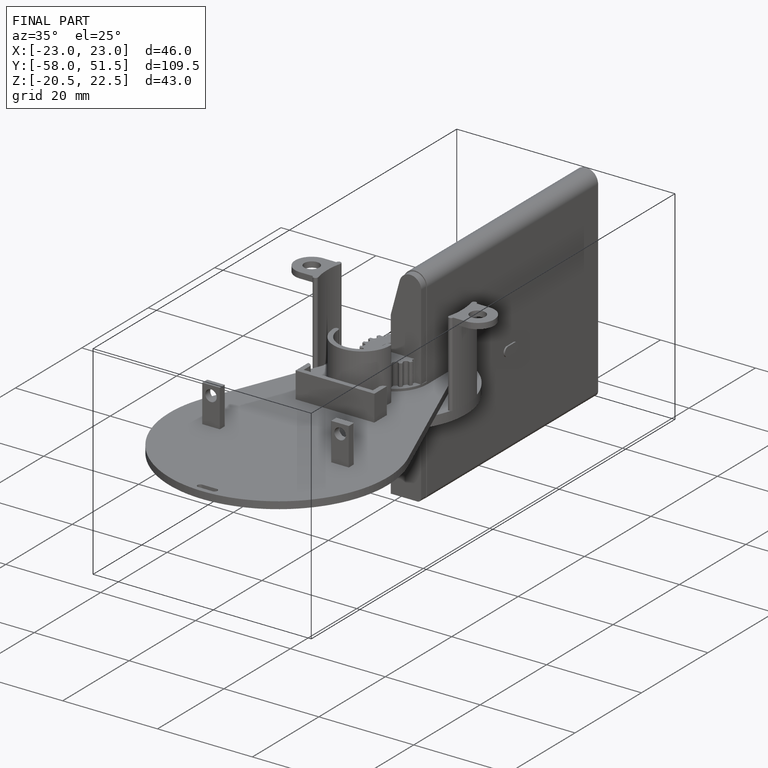
[diagram: finished part — iso view with bounding-box wireframe]
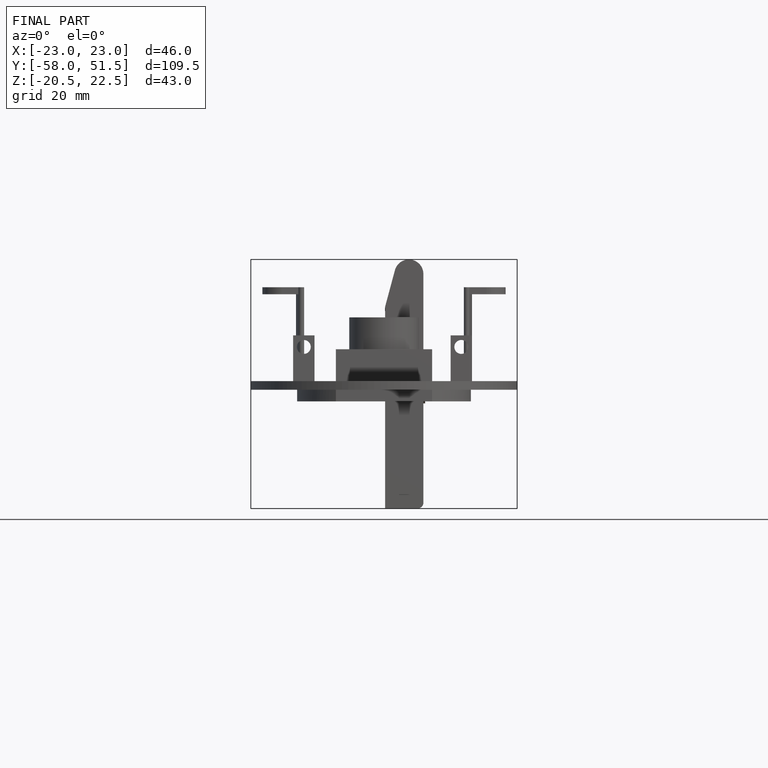
[diagram: finished part — front view with bounding-box wireframe]
